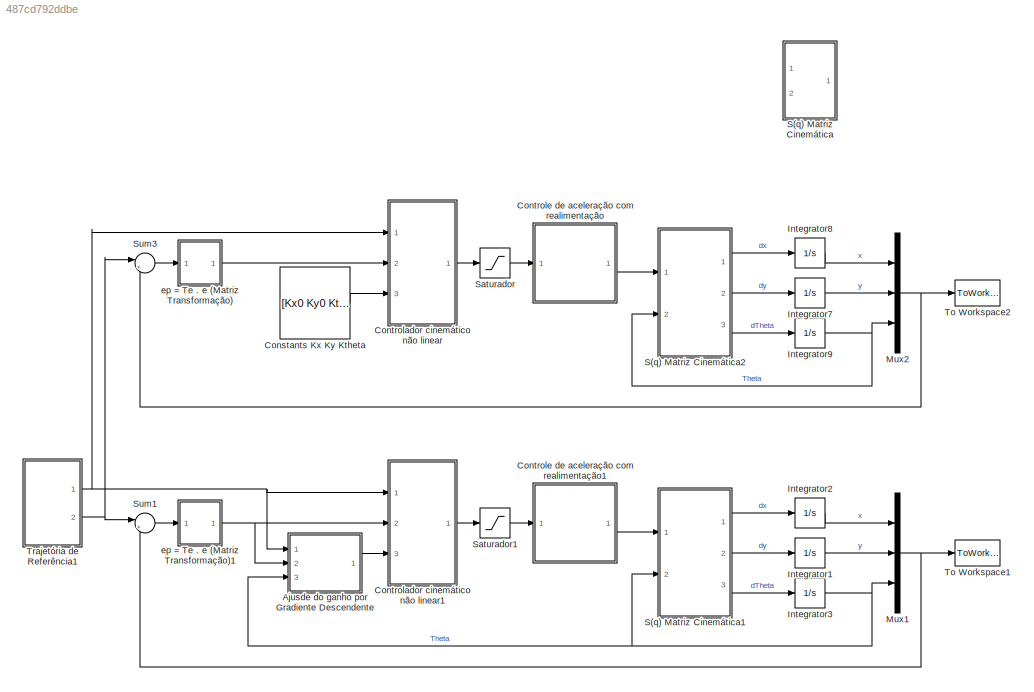
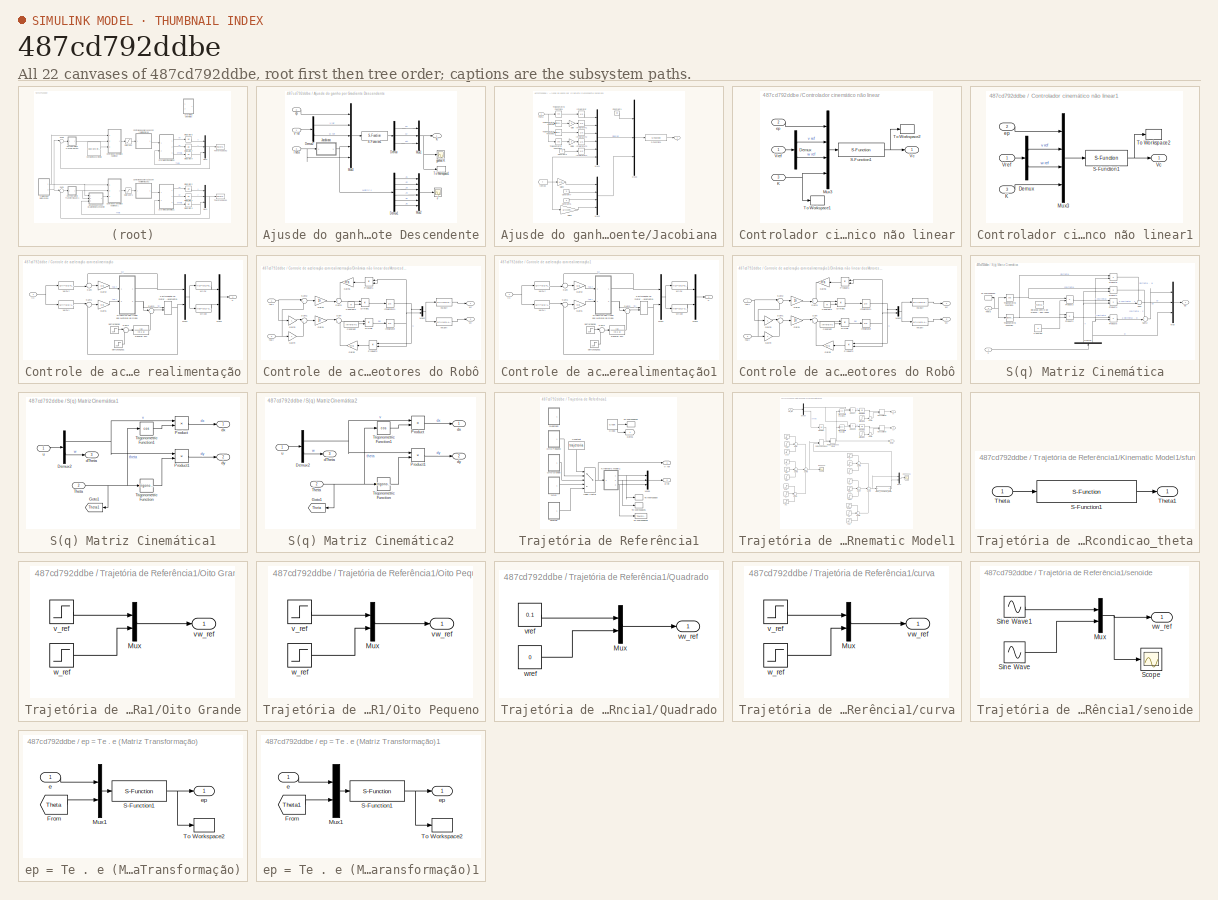
[diagram: thumbnail index - all 22 canvases of the model, root first then tree order]
MODEL slx_487cd792ddbe
KIND model
CONFIG AbsTol = auto
CONFIG FixedStep = auto
CONFIG MaxStep = auto
CONFIG MinStep = auto
CONFIG RelTol = 1e-3
CONFIG SampleTimeConstraint = Unconstrained
CONFIG Solver = ode45
CONFIG SolverMode = Auto
CONFIG SolverName = ode45
CONFIG StartTime = 0.0
CONFIG StopTime = Tsim
BLOCK [SubSystem] Ajusde do ganho por Gradiente Descendente
  Ports = [3, 1]
  RequestExecContextInheritance = off
  Variant = off
BLOCK [Demux] Ajusde do ganho por Gradiente Descendente/Demux
  DisplayOption = bar
  Outputs = 3
  Ports = [1, 3]
BLOCK [Demux] Ajusde do ganho por Gradiente Descendente/Demux1
  DisplayOption = bar
  Outputs = 6
  Ports = [1, 6]
BLOCK [Demux] Ajusde do ganho por Gradiente Descendente/Demux2
  DisplayOption = bar
  Outputs = 2
  Ports = [1, 2]
BLOCK [Scope] Ajusde do ganho por Gradiente Descendente/J
  Ports = [1]
  ScopeSpecificationString = C++SS(StrPVP('Location','[773, 277, 1290, 649]'),StrPVP('Open','off'),MxPVP('AxesTitles',24,'struct(''axes1'',''%<SignalLabel>'')'),MxPVP('ScopeGraphics',28,'struct(''FigureColor'',''[0.5 0.5 0.5]'',''AxesColor'',''[0 0 0]'',''AxesTickColor'',''[1 1 1]'',''LineColors'',''[1 1 0;1 0 1;0 1 1;1 0 0;0 1 0;0 0 1]'',''LineStyles'',''-|-|-|-|-|-'',''LineWidths'',''[0.5 0.5 0.5 0.5 0.5 0.5]'',''MarkerStyl...<+298ch>
BLOCK [SubSystem] Ajusde do ganho por Gradiente Descendente/Jacobiana
  Ports = [1, 1]
  RequestExecContextInheritance = off
  Variant = off
BLOCK [Constant] Ajusde do ganho por Gradiente Descendente/Jacobiana/Constant1
  SampleTime = Ts
  Value = Kp
BLOCK [Constant] Ajusde do ganho por Gradiente Descendente/Jacobiana/Constant3
  SampleTime = Ts
  Value = 0
BLOCK [Constant] Ajusde do ganho por Gradiente Descendente/Jacobiana/Constant5
  SampleTime = Ts
  Value = 0
BLOCK [Constant] Ajusde do ganho por Gradiente Descendente/Jacobiana/Constant7
  SampleTime = Ts
  Value = 0
BLOCK [Gain] Ajusde do ganho por Gradiente Descendente/Jacobiana/Gain
  Gain = -a
  OutDataTypeStr = Inherit: Inherit via internal rule
  ParamDataTypeStr = Inherit: Inherit via internal rule
  SaturateOnIntegerOverflow = off
BLOCK [Gain] Ajusde do ganho por Gradiente Descendente/Jacobiana/Gain1
  Gain = a
  OutDataTypeStr = Inherit: Inherit via internal rule
  ParamDataTypeStr = Inherit: Inherit via internal rule
  SaturateOnIntegerOverflow = off
BLOCK [Gain] Ajusde do ganho por Gradiente Descendente/Jacobiana/Gain2
  Gain = 1/m
  OutDataTypeStr = Inherit: Inherit via internal rule
  ParamDataTypeStr = Inherit: Inherit via internal rule
  SaturateOnIntegerOverflow = off
BLOCK [Gain] Ajusde do ganho por Gradiente Descendente/Jacobiana/Gain3
  Gain = 1/(Ic+m*a*a)
  OutDataTypeStr = Inherit: Inherit via internal rule
  ParamDataTypeStr = Inherit: Inherit via internal rule
  SaturateOnIntegerOverflow = off
BLOCK [Integrator] Ajusde do ganho por Gradiente Descendente/Jacobiana/Integrator
  Ports = [1, 1]
BLOCK [Integrator] Ajusde do ganho por Gradiente Descendente/Jacobiana/Integrator1
  Ports = [1, 1]
BLOCK [Integrator] Ajusde do ganho por Gradiente Descendente/Jacobiana/Integrator2
  Ports = [1, 1]
BLOCK [Integrator] Ajusde do ganho por Gradiente Descendente/Jacobiana/Integrator3
  Ports = [1, 1]
BLOCK [Integrator] Ajusde do ganho por Gradiente Descendente/Jacobiana/Integrator4
  Ports = [1, 1]
BLOCK [Outport] Ajusde do ganho por Gradiente Descendente/Jacobiana/J
  IconDisplay = Port number
BLOCK [Mux] Ajusde do ganho por Gradiente Descendente/Jacobiana/Mux1
  DisplayOption = bar
  Inputs = 6
  Ports = [6, 1]
BLOCK [Mux] Ajusde do ganho por Gradiente Descendente/Jacobiana/Mux2
  DisplayOption = bar
  Ports = [4, 1]
BLOCK [Mux] Ajusde do ganho por Gradiente Descendente/Jacobiana/Mux3
  DisplayOption = bar
  Inputs = 3
  Ports = [3, 1]
BLOCK [S-Function] Ajusde do ganho por Gradiente Descendente/Jacobiana/S-Function1
  EnableBusSupport = off
  FunctionName = sfunc_adaptativo_J
  Parameters = Ts
  Ports = [1, 1]
  SFunctionDeploymentMode = off
BLOCK [Inport] Ajusde do ganho por Gradiente Descendente/Jacobiana/Theta
  IconDisplay = Port number
BLOCK [Trigonometry] Ajusde do ganho por Gradiente Descendente/Jacobiana/Trigonometric Function
  Ports = [1, 1]
BLOCK [Trigonometry] Ajusde do ganho por Gradiente Descendente/Jacobiana/Trigonometric Function1
  Operator = cos
  Ports = [1, 1]
BLOCK [Trigonometry] Ajusde do ganho por Gradiente Descendente/Jacobiana/Trigonometric Function2
  Ports = [1, 1]
BLOCK [Trigonometry] Ajusde do ganho por Gradiente Descendente/Jacobiana/Trigonometric Function3
  Operator = cos
  Ports = [1, 1]
BLOCK [From] Ajusde do ganho por Gradiente Descendente/Jacobiana/tempo
  GotoTag = t
  TagVisibility = global
BLOCK [Outport] Ajusde do ganho por Gradiente Descendente/K
  IconDisplay = Port number
BLOCK [Mux] Ajusde do ganho por Gradiente Descendente/Mux1
  DisplayOption = bar
  Inputs = 3
  Ports = [3, 1]
BLOCK [Mux] Ajusde do ganho por Gradiente Descendente/Mux2
  DisplayOption = bar
  Inputs = 6
  Ports = [6, 1]
BLOCK [Mux] Ajusde do ganho por Gradiente Descendente/Mux3
  DisplayOption = bar
  Inputs = 5
  Ports = [5, 1]
BLOCK [S-Function] Ajusde do ganho por Gradiente Descendente/S-Function1
  EnableBusSupport = off
  FunctionName = sfunc_adaptativo
  Parameters = Ts
  Ports = [1, 1]
  SFunctionDeploymentMode = off
BLOCK [Inport] Ajusde do ganho por Gradiente Descendente/Theta
  IconDisplay = Port number
  Port = 3
BLOCK [ToWorkspace] Ajusde do ganho por Gradiente Descendente/To Workspace1
  MaxDataPoints = inf
  Ports = [1]
  SampleTime = Ts
  VariableName = K1
BLOCK [Inport] Ajusde do ganho por Gradiente Descendente/V ref
  IconDisplay = Port number
BLOCK [Inport] Ajusde do ganho por Gradiente Descendente/ep
  IconDisplay = Port number
  Port = 2
BLOCK [Scope] Ajusde do ganho por Gradiente Descendente/ganhos K
  Ports = [1]
  ScopeSpecificationString = C++SS(StrPVP('Location','[1, 48, 1367, 737]'),StrPVP('Open','off'),StrPVP('ZoomMode','xonly'),MxPVP('AxesTitles',24,'struct(''axes1'',''%<SignalLabel>'')'),MxPVP('ScopeGraphics',28,'struct(''FigureColor'',''[0.5 0.5 0.5]'',''AxesColor'',''[0 0 0]'',''AxesTickColor'',''[1 1 1]'',''LineColors'',''[1 1 0;1 0 1;0 1 1;1 0 0;0 1 0;0 0 1]'',''LineStyles'',''-|-|-|-|-|-'',''LineWidths'',''[0.5 0.5 0.5 0.5...<+365ch>
BLOCK [Constant] Constants Kx  Ky  Ktheta  
  Value = [Kx0\nKy0\nKtt0]
BLOCK [SubSystem] Controlador cinemático não linear
  Ports = [3, 1]
  RequestExecContextInheritance = off
  Variant = off
BLOCK [Demux] Controlador cinemático não linear/Demux
  DisplayOption = bar
  Outputs = 2
  Ports = [1, 2]
BLOCK [Inport] Controlador cinemático não linear/K
  IconDisplay = Port number
  Port = 3
BLOCK [Mux] Controlador cinemático não linear/Mux3
  DisplayOption = bar
  Ports = [4, 1]
BLOCK [S-Function] Controlador cinemático não linear/S-Function1
  EnableBusSupport = off
  FunctionName = sfunc_K_adaptativo
  Parameters = Ts
  Ports = [1, 1]
  SFunctionDeploymentMode = off
BLOCK [ToWorkspace] Controlador cinemático não linear/To Workspace1
  MaxDataPoints = inf
  Ports = [1]
  SampleTime = Ts
  VariableName = K
BLOCK [ToWorkspace] Controlador cinemático não linear/To Workspace2
  MaxDataPoints = inf
  Ports = [1]
  SampleTime = Ts
  VariableName = Vc
BLOCK [Outport] Controlador cinemático não linear/Vc
  IconDisplay = Port number
BLOCK [Inport] Controlador cinemático não linear/Vref
  IconDisplay = Port number
BLOCK [Inport] Controlador cinemático não linear/ep
  IconDisplay = Port number
  Port = 2
BLOCK [SubSystem] Controlador cinemático não linear1
  Ports = [3, 1]
  RequestExecContextInheritance = off
  Variant = off
BLOCK [Demux] Controlador cinemático não linear1/Demux
  DisplayOption = bar
  Outputs = 2
  Ports = [1, 2]
BLOCK [Inport] Controlador cinemático não linear1/K
  IconDisplay = Port number
  Port = 3
BLOCK [Mux] Controlador cinemático não linear1/Mux3
  DisplayOption = bar
  Ports = [4, 1]
BLOCK [S-Function] Controlador cinemático não linear1/S-Function1
  EnableBusSupport = off
  FunctionName = sfunc_K_adaptativo
  Parameters = Ts
  Ports = [1, 1]
  SFunctionDeploymentMode = off
BLOCK [ToWorkspace] Controlador cinemático não linear1/To Workspace2
  MaxDataPoints = inf
  Ports = [1]
  SampleTime = Ts
  VariableName = Vc1
BLOCK [Outport] Controlador cinemático não linear1/Vc
  IconDisplay = Port number
BLOCK [Inport] Controlador cinemático não linear1/Vref
  IconDisplay = Port number
BLOCK [Inport] Controlador cinemático não linear1/ep
  IconDisplay = Port number
  Port = 2
BLOCK [SubSystem] Controle de aceleração com realimentação
  Ports = [1, 1]
  RequestExecContextInheritance = off
  Variant = off
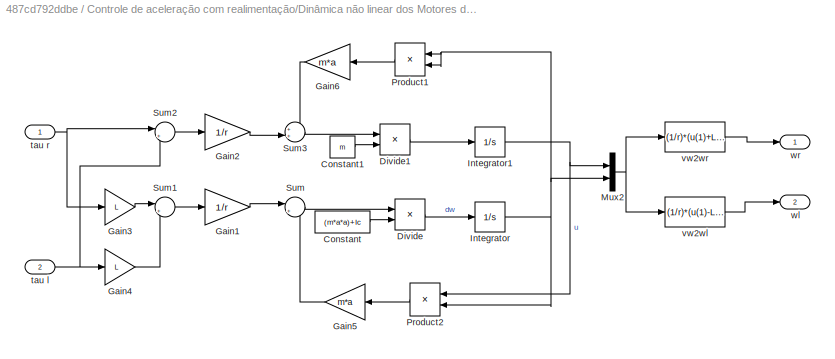
BLOCK [SubSystem] Controle de aceleração com realimentação/Dinâmica não linear dos Motores do Robô
  Ports = [2, 2]
  RequestExecContextInheritance = off
  Variant = off
BLOCK [Constant] Controle de aceleração com realimentação/Dinâmica não linear dos Motores do Robô/Constant
  Value = (m*a*a)+Ic
BLOCK [Constant] Controle de aceleração com realimentação/Dinâmica não linear dos Motores do Robô/Constant1
  Value = m
BLOCK [Product] Controle de aceleração com realimentação/Dinâmica não linear dos Motores do Robô/Divide
  InputSameDT = off
  Inputs = */
  OutDataTypeStr = Inherit: Inherit via internal rule
  Ports = [2, 1]
  RndMeth = Floor
  SaturateOnIntegerOverflow = off
BLOCK [Product] Controle de aceleração com realimentação/Dinâmica não linear dos Motores do Robô/Divide1
  InputSameDT = off
  Inputs = */
  OutDataTypeStr = Inherit: Inherit via internal rule
  Ports = [2, 1]
  RndMeth = Floor
  SaturateOnIntegerOverflow = off
BLOCK [Gain] Controle de aceleração com realimentação/Dinâmica não linear dos Motores do Robô/Gain1
  Gain = 1/r
  OutDataTypeStr = Inherit: Inherit via internal rule
  ParamDataTypeStr = Inherit: Inherit via internal rule
  SaturateOnIntegerOverflow = off
BLOCK [Gain] Controle de aceleração com realimentação/Dinâmica não linear dos Motores do Robô/Gain2
  Gain = 1/r
  OutDataTypeStr = Inherit: Inherit via internal rule
  ParamDataTypeStr = Inherit: Inherit via internal rule
  SaturateOnIntegerOverflow = off
BLOCK [Gain] Controle de aceleração com realimentação/Dinâmica não linear dos Motores do Robô/Gain3
  Gain = L
  OutDataTypeStr = Inherit: Inherit via internal rule
  ParamDataTypeStr = Inherit: Inherit via internal rule
  SaturateOnIntegerOverflow = off
BLOCK [Gain] Controle de aceleração com realimentação/Dinâmica não linear dos Motores do Robô/Gain4
  Gain = L
  OutDataTypeStr = Inherit: Inherit via internal rule
  ParamDataTypeStr = Inherit: Inherit via internal rule
  SaturateOnIntegerOverflow = off
BLOCK [Gain] Controle de aceleração com realimentação/Dinâmica não linear dos Motores do Robô/Gain5
  Gain = m*a
  OutDataTypeStr = Inherit: Inherit via internal rule
  ParamDataTypeStr = Inherit: Inherit via internal rule
  SaturateOnIntegerOverflow = off
BLOCK [Gain] Controle de aceleração com realimentação/Dinâmica não linear dos Motores do Robô/Gain6
  Gain = m*a
  OutDataTypeStr = Inherit: Inherit via internal rule
  ParamDataTypeStr = Inherit: Inherit via internal rule
  SaturateOnIntegerOverflow = off
BLOCK [Integrator] Controle de aceleração com realimentação/Dinâmica não linear dos Motores do Robô/Integrator
  Ports = [1, 1]
BLOCK [Integrator] Controle de aceleração com realimentação/Dinâmica não linear dos Motores do Robô/Integrator1
  Ports = [1, 1]
BLOCK [Mux] Controle de aceleração com realimentação/Dinâmica não linear dos Motores do Robô/Mux2
  DisplayOption = bar
  Inputs = 2
  Ports = [2, 1]
BLOCK [Product] Controle de aceleração com realimentação/Dinâmica não linear dos Motores do Robô/Product1
  InputSameDT = off
  OutDataTypeStr = Inherit: Inherit via internal rule
  Ports = [2, 1]
  RndMeth = Floor
  SampleTime = Ts
  SaturateOnIntegerOverflow = off
BLOCK [Product] Controle de aceleração com realimentação/Dinâmica não linear dos Motores do Robô/Product2
  InputSameDT = off
  OutDataTypeStr = Inherit: Inherit via internal rule
  Ports = [2, 1]
  RndMeth = Floor
  SampleTime = Ts
  SaturateOnIntegerOverflow = off
BLOCK [Sum] Controle de aceleração com realimentação/Dinâmica não linear dos Motores do Robô/Sum
  IconShape = round
  InputSameDT = off
  Inputs = |+-
  OutDataTypeStr = Inherit: Inherit via internal rule
  Ports = [2, 1]
  SaturateOnIntegerOverflow = off
BLOCK [Sum] Controle de aceleração com realimentação/Dinâmica não linear dos Motores do Robô/Sum1
  IconShape = round
  InputSameDT = off
  Inputs = |+-
  OutDataTypeStr = Inherit: Inherit via internal rule
  Ports = [2, 1]
  SaturateOnIntegerOverflow = off
BLOCK [Sum] Controle de aceleração com realimentação/Dinâmica não linear dos Motores do Robô/Sum2
  IconShape = round
  InputSameDT = off
  Inputs = |++
  OutDataTypeStr = Inherit: Inherit via internal rule
  Ports = [2, 1]
  SaturateOnIntegerOverflow = off
BLOCK [Sum] Controle de aceleração com realimentação/Dinâmica não linear dos Motores do Robô/Sum3
  IconShape = round
  InputSameDT = off
  Inputs = ++|
  OutDataTypeStr = Inherit: Inherit via internal rule
  Ports = [2, 1]
  SaturateOnIntegerOverflow = off
BLOCK [Inport] Controle de aceleração com realimentação/Dinâmica não linear dos Motores do Robô/tau l
  IconDisplay = Port number
  Port = 2
BLOCK [Inport] Controle de aceleração com realimentação/Dinâmica não linear dos Motores do Robô/tau r
  IconDisplay = Port number
BLOCK [Fcn] Controle de aceleração com realimentação/Dinâmica não linear dos Motores do Robô/vw2wl
  Expr = (1/r)*(u(1)-L*u(2))
BLOCK [Fcn] Controle de aceleração com realimentação/Dinâmica não linear dos Motores do Robô/vw2wr
  Expr = (1/r)*(u(1)+L*u(2))
BLOCK [Outport] Controle de aceleração com realimentação/Dinâmica não linear dos Motores do Robô/wl
  IconDisplay = Port number
  Port = 2
BLOCK [Outport] Controle de aceleração com realimentação/Dinâmica não linear dos Motores do Robô/wr
  IconDisplay = Port number
BLOCK [Gain] Controle de aceleração com realimentação/Gain1
  Gain = Kp
  OutDataTypeStr = Inherit: Inherit via internal rule
  ParamDataTypeStr = Inherit: Inherit via internal rule
  SaturateOnIntegerOverflow = off
BLOCK [Gain] Controle de aceleração com realimentação/Gain2
  Gain = Kp
  OutDataTypeStr = Inherit: Inherit via internal rule
  ParamDataTypeStr = Inherit: Inherit via internal rule
  SaturateOnIntegerOverflow = off
BLOCK [Mux] Controle de aceleração com realimentação/Mux1
  DisplayOption = bar
  Inputs = 2
  Ports = [2, 1]
BLOCK [Mux] Controle de aceleração com realimentação/Mux2
  DisplayOption = bar
  Inputs = 2
  Ports = [2, 1]
BLOCK [ManualSwitch] Controle de aceleração com realimentação/Perturbação no motor esquerdo (travamento)
BLOCK [Sum] Controle de aceleração com realimentação/Sum
  IconShape = round
  InputSameDT = off
  Inputs = -+|
  OutDataTypeStr = Inherit: Inherit via internal rule
  Ports = [2, 1]
  SaturateOnIntegerOverflow = off
BLOCK [Sum] Controle de aceleração com realimentação/Sum1
  IconShape = round
  InputSameDT = off
  Inputs = |+-
  OutDataTypeStr = Inherit: Inherit via internal rule
  Ports = [2, 1]
  SaturateOnIntegerOverflow = off
BLOCK [Sum] Controle de aceleração com realimentação/Sum2
  IconShape = round
  InputSameDT = off
  Inputs = |+-
  OutDataTypeStr = Inherit: Inherit via internal rule
  Ports = [2, 1]
  SaturateOnIntegerOverflow = off
BLOCK [Sum] Controle de aceleração com realimentação/Sum4
  IconShape = round
  InputSameDT = off
  Inputs = |+-
  OutDataTypeStr = Inherit: Inherit via internal rule
  Ports = [2, 1]
  SaturateOnIntegerOverflow = off
BLOCK [TransferFcn] Controle de aceleração com realimentação/Transfer Fcn
  Denominator = [0.1 1]
BLOCK [Inport] Controle de aceleração com realimentação/Vc
  IconDisplay = Port number
BLOCK [Step] Controle de aceleração com realimentação/perturbação
  After = 5
  SampleTime = Ts
  Time = 6
BLOCK [Step] Controle de aceleração com realimentação/perturbação1
  After = 5
  SampleTime = Ts
  Time = 6.5
BLOCK [Outport] Controle de aceleração com realimentação/u
  IconDisplay = Port number
BLOCK [Fcn] Controle de aceleração com realimentação/vw2Vl
  Expr = (1/r)*(u(1)-L*u(2))
BLOCK [Fcn] Controle de aceleração com realimentação/vw2Vr
  Expr = (1/r)*(u(1)+L*u(2))
BLOCK [Fcn] Controle de aceleração com realimentação/wrl2v
  Expr = (r/2)*(u(1)+u(2))
BLOCK [Fcn] Controle de aceleração com realimentação/wrl2w
  Expr = (r/b)*(u(1)-u(2))
BLOCK [SubSystem] Controle de aceleração com realimentação1
  Ports = [1, 1]
  RequestExecContextInheritance = off
  Variant = off
BLOCK [SubSystem] Controle de aceleração com realimentação1/Dinâmica não linear dos Motores do Robô
  Ports = [2, 2]
  RequestExecContextInheritance = off
  Variant = off
BLOCK [Constant] Controle de aceleração com realimentação1/Dinâmica não linear dos Motores do Robô/Constant
  Value = (m*a*a)+Ic
BLOCK [Constant] Controle de aceleração com realimentação1/Dinâmica não linear dos Motores do Robô/Constant1
  Value = m
BLOCK [Product] Controle de aceleração com realimentação1/Dinâmica não linear dos Motores do Robô/Divide
  InputSameDT = off
  Inputs = */
  OutDataTypeStr = Inherit: Inherit via internal rule
  Ports = [2, 1]
  RndMeth = Floor
  SaturateOnIntegerOverflow = off
BLOCK [Product] Controle de aceleração com realimentação1/Dinâmica não linear dos Motores do Robô/Divide1
  InputSameDT = off
  Inputs = */
  OutDataTypeStr = Inherit: Inherit via internal rule
  Ports = [2, 1]
  RndMeth = Floor
  SaturateOnIntegerOverflow = off
BLOCK [Gain] Controle de aceleração com realimentação1/Dinâmica não linear dos Motores do Robô/Gain1
  Gain = 1/r
  OutDataTypeStr = Inherit: Inherit via internal rule
  ParamDataTypeStr = Inherit: Inherit via internal rule
  SaturateOnIntegerOverflow = off
BLOCK [Gain] Controle de aceleração com realimentação1/Dinâmica não linear dos Motores do Robô/Gain2
  Gain = 1/r
  OutDataTypeStr = Inherit: Inherit via internal rule
  ParamDataTypeStr = Inherit: Inherit via internal rule
  SaturateOnIntegerOverflow = off
BLOCK [Gain] Controle de aceleração com realimentação1/Dinâmica não linear dos Motores do Robô/Gain3
  Gain = L
  OutDataTypeStr = Inherit: Inherit via internal rule
  ParamDataTypeStr = Inherit: Inherit via internal rule
  SaturateOnIntegerOverflow = off
BLOCK [Gain] Controle de aceleração com realimentação1/Dinâmica não linear dos Motores do Robô/Gain4
  Gain = L
  OutDataTypeStr = Inherit: Inherit via internal rule
  ParamDataTypeStr = Inherit: Inherit via internal rule
  SaturateOnIntegerOverflow = off
BLOCK [Gain] Controle de aceleração com realimentação1/Dinâmica não linear dos Motores do Robô/Gain5
  Gain = m*a
  OutDataTypeStr = Inherit: Inherit via internal rule
  ParamDataTypeStr = Inherit: Inherit via internal rule
  SaturateOnIntegerOverflow = off
BLOCK [Gain] Controle de aceleração com realimentação1/Dinâmica não linear dos Motores do Robô/Gain6
  Gain = m*a
  OutDataTypeStr = Inherit: Inherit via internal rule
  ParamDataTypeStr = Inherit: Inherit via internal rule
  SaturateOnIntegerOverflow = off
BLOCK [Integrator] Controle de aceleração com realimentação1/Dinâmica não linear dos Motores do Robô/Integrator
  Ports = [1, 1]
BLOCK [Integrator] Controle de aceleração com realimentação1/Dinâmica não linear dos Motores do Robô/Integrator1
  Ports = [1, 1]
BLOCK [Mux] Controle de aceleração com realimentação1/Dinâmica não linear dos Motores do Robô/Mux2
  DisplayOption = bar
  Inputs = 2
  Ports = [2, 1]
BLOCK [Product] Controle de aceleração com realimentação1/Dinâmica não linear dos Motores do Robô/Product1
  InputSameDT = off
  OutDataTypeStr = Inherit: Inherit via internal rule
  Ports = [2, 1]
  RndMeth = Floor
  SampleTime = Ts
  SaturateOnIntegerOverflow = off
BLOCK [Product] Controle de aceleração com realimentação1/Dinâmica não linear dos Motores do Robô/Product2
  InputSameDT = off
  OutDataTypeStr = Inherit: Inherit via internal rule
  Ports = [2, 1]
  RndMeth = Floor
  SampleTime = Ts
  SaturateOnIntegerOverflow = off
BLOCK [Sum] Controle de aceleração com realimentação1/Dinâmica não linear dos Motores do Robô/Sum
  IconShape = round
  InputSameDT = off
  Inputs = |+-
  OutDataTypeStr = Inherit: Inherit via internal rule
  Ports = [2, 1]
  SaturateOnIntegerOverflow = off
BLOCK [Sum] Controle de aceleração com realimentação1/Dinâmica não linear dos Motores do Robô/Sum1
  IconShape = round
  InputSameDT = off
  Inputs = |+-
  OutDataTypeStr = Inherit: Inherit via internal rule
  Ports = [2, 1]
  SaturateOnIntegerOverflow = off
BLOCK [Sum] Controle de aceleração com realimentação1/Dinâmica não linear dos Motores do Robô/Sum2
  IconShape = round
  InputSameDT = off
  Inputs = |++
  OutDataTypeStr = Inherit: Inherit via internal rule
  Ports = [2, 1]
  SaturateOnIntegerOverflow = off
BLOCK [Sum] Controle de aceleração com realimentação1/Dinâmica não linear dos Motores do Robô/Sum3
  IconShape = round
  InputSameDT = off
  Inputs = ++|
  OutDataTypeStr = Inherit: Inherit via internal rule
  Ports = [2, 1]
  SaturateOnIntegerOverflow = off
BLOCK [Inport] Controle de aceleração com realimentação1/Dinâmica não linear dos Motores do Robô/tau l
  IconDisplay = Port number
  Port = 2
BLOCK [Inport] Controle de aceleração com realimentação1/Dinâmica não linear dos Motores do Robô/tau r
  IconDisplay = Port number
BLOCK [Fcn] Controle de aceleração com realimentação1/Dinâmica não linear dos Motores do Robô/vw2wl
  Expr = (1/r)*(u(1)-L*u(2))
BLOCK [Fcn] Controle de aceleração com realimentação1/Dinâmica não linear dos Motores do Robô/vw2wr
  Expr = (1/r)*(u(1)+L*u(2))
BLOCK [Outport] Controle de aceleração com realimentação1/Dinâmica não linear dos Motores do Robô/wl
  IconDisplay = Port number
  Port = 2
BLOCK [Outport] Controle de aceleração com realimentação1/Dinâmica não linear dos Motores do Robô/wr
  IconDisplay = Port number
BLOCK [Gain] Controle de aceleração com realimentação1/Gain1
  Gain = Kp
  OutDataTypeStr = Inherit: Inherit via internal rule
  ParamDataTypeStr = Inherit: Inherit via internal rule
  SaturateOnIntegerOverflow = off
BLOCK [Gain] Controle de aceleração com realimentação1/Gain2
  Gain = Kp
  OutDataTypeStr = Inherit: Inherit via internal rule
  ParamDataTypeStr = Inherit: Inherit via internal rule
  SaturateOnIntegerOverflow = off
BLOCK [Mux] Controle de aceleração com realimentação1/Mux1
  DisplayOption = bar
  Inputs = 2
  Ports = [2, 1]
BLOCK [Mux] Controle de aceleração com realimentação1/Mux2
  DisplayOption = bar
  Inputs = 2
  Ports = [2, 1]
BLOCK [ManualSwitch] Controle de aceleração com realimentação1/Perturbação no motor esquerdo (travamento)
BLOCK [Sum] Controle de aceleração com realimentação1/Sum
  IconShape = round
  InputSameDT = off
  Inputs = -+|
  OutDataTypeStr = Inherit: Inherit via internal rule
  Ports = [2, 1]
  SaturateOnIntegerOverflow = off
BLOCK [Sum] Controle de aceleração com realimentação1/Sum1
  IconShape = round
  InputSameDT = off
  Inputs = |+-
  OutDataTypeStr = Inherit: Inherit via internal rule
  Ports = [2, 1]
  SaturateOnIntegerOverflow = off
BLOCK [Sum] Controle de aceleração com realimentação1/Sum2
  IconShape = round
  InputSameDT = off
  Inputs = |+-
  OutDataTypeStr = Inherit: Inherit via internal rule
  Ports = [2, 1]
  SaturateOnIntegerOverflow = off
BLOCK [Sum] Controle de aceleração com realimentação1/Sum4
  IconShape = round
  InputSameDT = off
  Inputs = |+-
  OutDataTypeStr = Inherit: Inherit via internal rule
  Ports = [2, 1]
  SaturateOnIntegerOverflow = off
BLOCK [TransferFcn] Controle de aceleração com realimentação1/Transfer Fcn
  Denominator = [0.1 1]
BLOCK [Inport] Controle de aceleração com realimentação1/Vc
  IconDisplay = Port number
BLOCK [Step] Controle de aceleração com realimentação1/perturbação
  After = 5
  SampleTime = Ts
  Time = 6
BLOCK [Step] Controle de aceleração com realimentação1/perturbação1
  After = 5
  SampleTime = Ts
  Time = 6.5
BLOCK [Outport] Controle de aceleração com realimentação1/u
  IconDisplay = Port number
BLOCK [Fcn] Controle de aceleração com realimentação1/vw2Vl
  Expr = (1/r)*(u(1)-L*u(2))
BLOCK [Fcn] Controle de aceleração com realimentação1/vw2Vr
  Expr = (1/r)*(u(1)+L*u(2))
BLOCK [Fcn] Controle de aceleração com realimentação1/wrl2v
  Expr = (r/2)*(u(1)+u(2))
BLOCK [Fcn] Controle de aceleração com realimentação1/wrl2w
  Expr = (r/b)*(u(1)-u(2))
BLOCK [Integrator] Integrator1
  InitialCondition = xo
  Ports = [1, 1]
BLOCK [Integrator] Integrator2
  InitialCondition = xo
  Ports = [1, 1]
BLOCK [Integrator] Integrator3
  InitialCondition = xo
  Ports = [1, 1]
BLOCK [Integrator] Integrator7
  InitialCondition = xo
  Ports = [1, 1]
BLOCK [Integrator] Integrator8
  InitialCondition = xo
  Ports = [1, 1]
BLOCK [Integrator] Integrator9
  InitialCondition = xo
  Ports = [1, 1]
BLOCK [Mux] Mux1
  DisplayOption = bar
  Inputs = 3
  Ports = [3, 1]
BLOCK [Mux] Mux2
  DisplayOption = bar
  Inputs = 3
  Ports = [3, 1]
BLOCK [SubSystem] S(q) Matriz Cinemática
  Commented = on
  Ports = [2, 1]
  RequestExecContextInheritance = off
  Variant = off
BLOCK [Constant] S(q) Matriz Cinemática/Constant
  Value = a
BLOCK [Demux] S(q) Matriz Cinemática/Demux
  DisplayOption = bar
  Outputs = 2
  Ports = [1, 2]
BLOCK [Mux] S(q) Matriz Cinemática/Mux
  DisplayOption = bar
  Inputs = 3
  Ports = [3, 1]
BLOCK [Product] S(q) Matriz Cinemática/Product1
  InputSameDT = off
  OutDataTypeStr = Inherit: Inherit via internal rule
  Ports = [2, 1]
  RndMeth = Floor
  SaturateOnIntegerOverflow = off
BLOCK [Product] S(q) Matriz Cinemática/Product2
  InputSameDT = off
  OutDataTypeStr = Inherit: Inherit via internal rule
  Ports = [2, 1]
  RndMeth = Floor
  SaturateOnIntegerOverflow = off
BLOCK [Product] S(q) Matriz Cinemática/Product3
  InputSameDT = off
  OutDataTypeStr = Inherit: Inherit via internal rule
  Ports = [2, 1]
  RndMeth = Floor
  SaturateOnIntegerOverflow = off
BLOCK [Product] S(q) Matriz Cinemática/Product4
  InputSameDT = off
  OutDataTypeStr = Inherit: Inherit via internal rule
  Ports = [2, 1]
  RndMeth = Floor
  SaturateOnIntegerOverflow = off
BLOCK [Product] S(q) Matriz Cinemática/Product5
  InputSameDT = off
  OutDataTypeStr = Inherit: Inherit via internal rule
  Ports = [2, 1]
  RndMeth = Floor
  SaturateOnIntegerOverflow = off
BLOCK [Product] S(q) Matriz Cinemática/Product8
  InputSameDT = off
  OutDataTypeStr = Inherit: Inherit via internal rule
  Ports = [2, 1]
  RndMeth = Floor
  SaturateOnIntegerOverflow = off
BLOCK [Sum] S(q) Matriz Cinemática/Sum
  IconShape = round
  InputSameDT = off
  Inputs = ++|
  OutDataTypeStr = Inherit: Inherit via internal rule
  Ports = [2, 1]
  SaturateOnIntegerOverflow = off
BLOCK [Sum] S(q) Matriz Cinemática/Sum2
  IconShape = round
  InputSameDT = off
  Inputs = +-|
  OutDataTypeStr = Inherit: Inherit via internal rule
  Ports = [2, 1]
  SaturateOnIntegerOverflow = off
BLOCK [Inport] S(q) Matriz Cinemática/Theta
  IconDisplay = Port number
  Port = 2
BLOCK [ToWorkspace] S(q) Matriz Cinemática/To Workspace2
  MaxDataPoints = inf
  Ports = [1]
  SampleTime = Ts
  VariableName = Theta
BLOCK [Trigonometry] S(q) Matriz Cinemática/Trigonometric Function
  Ports = [1, 1]
BLOCK [Trigonometry] S(q) Matriz Cinemática/Trigonometric Function1
  Operator = cos
  Ports = [1, 1]
BLOCK [FromWorkspace] S(q) Matriz Cinemática/distância centro de massa - eixo das rodas
  Commented = on
  SampleTime = Ts
  VariableName = a
  ZeroCross = on
BLOCK [Outport] S(q) Matriz Cinemática/dq
  IconDisplay = Port number
BLOCK [Inport] S(q) Matriz Cinemática/u
  IconDisplay = Port number
BLOCK [SubSystem] S(q) Matriz Cinemática1
  Ports = [2, 3]
  RequestExecContextInheritance = off
  Variant = off
BLOCK [Demux] S(q) Matriz Cinemática1/Demux2
  DisplayOption = bar
  Outputs = 2
  Ports = [1, 2]
BLOCK [Goto] S(q) Matriz Cinemática1/Goto1
  GotoTag = Theta1
  TagVisibility = global
BLOCK [Product] S(q) Matriz Cinemática1/Product
  InputSameDT = off
  OutDataTypeStr = Inherit: Inherit via internal rule
  Ports = [2, 1]
  RndMeth = Floor
  SaturateOnIntegerOverflow = off
BLOCK [Product] S(q) Matriz Cinemática1/Product1
  InputSameDT = off
  OutDataTypeStr = Inherit: Inherit via internal rule
  Ports = [2, 1]
  RndMeth = Floor
  SaturateOnIntegerOverflow = off
BLOCK [Inport] S(q) Matriz Cinemática1/Theta
  IconDisplay = Port number
  Port = 2
BLOCK [Trigonometry] S(q) Matriz Cinemática1/Trigonometric Function
  Ports = [1, 1]
BLOCK [Trigonometry] S(q) Matriz Cinemática1/Trigonometric Function1
  Operator = cos
  Ports = [1, 1]
BLOCK [Outport] S(q) Matriz Cinemática1/dTheta
  IconDisplay = Port number
  Port = 3
BLOCK [Outport] S(q) Matriz Cinemática1/dx
  IconDisplay = Port number
BLOCK [Outport] S(q) Matriz Cinemática1/dy
  IconDisplay = Port number
  Port = 2
BLOCK [Inport] S(q) Matriz Cinemática1/u
  IconDisplay = Port number
BLOCK [SubSystem] S(q) Matriz Cinemática2
  Ports = [2, 3]
  RequestExecContextInheritance = off
  Variant = off
BLOCK [Demux] S(q) Matriz Cinemática2/Demux2
  DisplayOption = bar
  Outputs = 2
  Ports = [1, 2]
BLOCK [Goto] S(q) Matriz Cinemática2/Goto1
  GotoTag = Theta
  TagVisibility = global
BLOCK [Product] S(q) Matriz Cinemática2/Product
  InputSameDT = off
  OutDataTypeStr = Inherit: Inherit via internal rule
  Ports = [2, 1]
  RndMeth = Floor
  SaturateOnIntegerOverflow = off
BLOCK [Product] S(q) Matriz Cinemática2/Product1
  InputSameDT = off
  OutDataTypeStr = Inherit: Inherit via internal rule
  Ports = [2, 1]
  RndMeth = Floor
  SaturateOnIntegerOverflow = off
BLOCK [Inport] S(q) Matriz Cinemática2/Theta
  IconDisplay = Port number
  Port = 2
BLOCK [Trigonometry] S(q) Matriz Cinemática2/Trigonometric Function
  Ports = [1, 1]
BLOCK [Trigonometry] S(q) Matriz Cinemática2/Trigonometric Function1
  Operator = cos
  Ports = [1, 1]
BLOCK [Outport] S(q) Matriz Cinemática2/dTheta
  IconDisplay = Port number
  Port = 3
BLOCK [Outport] S(q) Matriz Cinemática2/dx
  IconDisplay = Port number
BLOCK [Outport] S(q) Matriz Cinemática2/dy
  IconDisplay = Port number
  Port = 2
BLOCK [Inport] S(q) Matriz Cinemática2/u
  IconDisplay = Port number
BLOCK [Saturate] Saturador
  InputPortMap = u0
  LowerLimit = -[0 0.8]
  Ports = [1, 1]
  UpperLimit = [0.8 0.8]
BLOCK [Saturate] Saturador1
  InputPortMap = u0
  LowerLimit = -[0 0.8]
  Ports = [1, 1]
  UpperLimit = [0.8 0.8]
BLOCK [Sum] Sum1
  IconShape = round
  InputSameDT = off
  Inputs = |+-
  OutDataTypeStr = Inherit: Inherit via internal rule
  Ports = [2, 1]
  SampleTime = Ts
  SaturateOnIntegerOverflow = off
BLOCK [Sum] Sum3
  IconShape = round
  InputSameDT = off
  Inputs = |+-
  OutDataTypeStr = Inherit: Inherit via internal rule
  Ports = [2, 1]
  SampleTime = Ts
  SaturateOnIntegerOverflow = off
BLOCK [ToWorkspace] To Workspace1
  MaxDataPoints = inf
  Ports = [1]
  SampleTime = Ts
  VariableName = q1
BLOCK [ToWorkspace] To Workspace2
  MaxDataPoints = inf
  Ports = [1]
  SampleTime = Ts
  VariableName = q
BLOCK [SubSystem] Trajetória de Referência1
  Ports = [0, 2]
  RequestExecContextInheritance = off
  Variant = off
BLOCK [Clock] Trajetória de Referência1/Clock
  Decimation = 1
  DisplayTime = on
BLOCK [Constant] Trajetória de Referência1/Constant
  SampleTime = Ts
  Value = trajetoria
BLOCK [Goto] Trajetória de Referência1/Goto1
  GotoTag = t
  TagVisibility = global
BLOCK [MultiPortSwitch] Trajetória de Referência1/Index Vector
  DataPortIndices = {1,2,3,4}
  DataPortOrder = Specify indices
  InputSameDT = off
  Inputs = 1
  Ports = [5, 1]
  SaturateOnIntegerOverflow = off
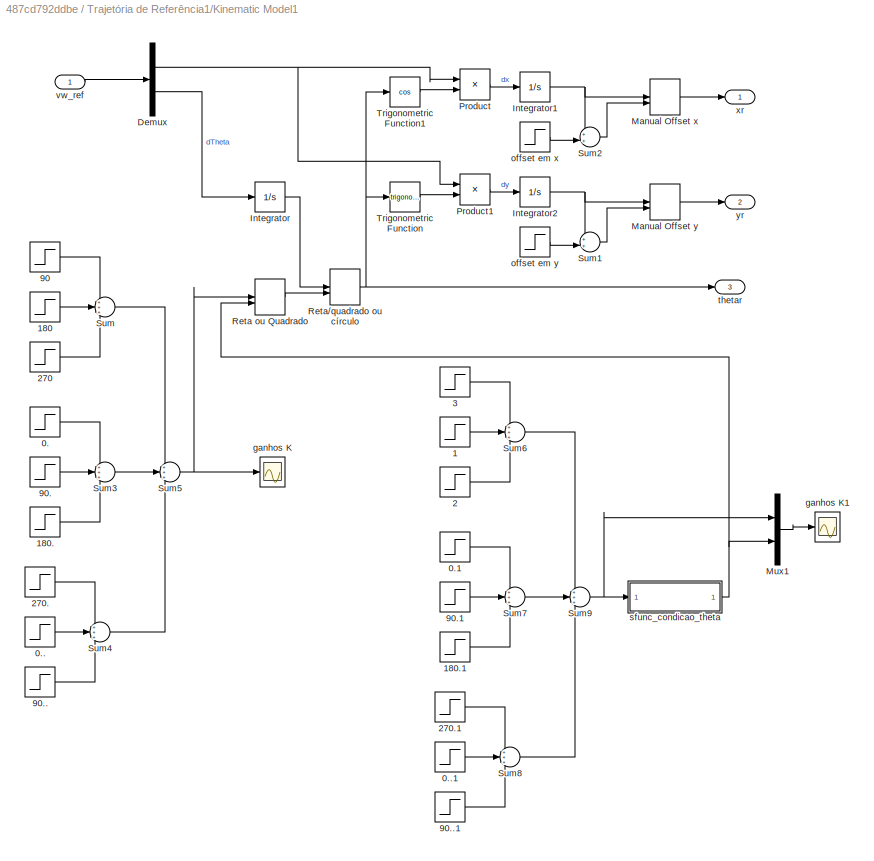
BLOCK [SubSystem] Trajetória de Referência1/Kinematic Model1
  Ports = [1, 3]
  RequestExecContextInheritance = off
  Variant = off
BLOCK [Step] Trajetória de Referência1/Kinematic Model1/0.
  After = -3*pi/2
  SampleTime = Ts
  Time = 80
BLOCK [Step] Trajetória de Referência1/Kinematic Model1/0..
  After = -3*pi/2
  SampleTime = Ts
  Time = 160
BLOCK [Step] Trajetória de Referência1/Kinematic Model1/0..1
  After = -3*pi/2
  SampleTime = Ts
  Time = 160
BLOCK [Step] Trajetória de Referência1/Kinematic Model1/0.1
  After = -3*pi/2
  SampleTime = Ts
  Time = 80
BLOCK [Step] Trajetória de Referência1/Kinematic Model1/1
  After = pi/2
  SampleTime = Ts
  Time = 40
BLOCK [Step] Trajetória de Referência1/Kinematic Model1/180
  After = pi/2
  SampleTime = Ts
  Time = 40
BLOCK [Step] Trajetória de Referência1/Kinematic Model1/180.
  After = pi/2
  SampleTime = Ts
  Time = 120
BLOCK [Step] Trajetória de Referência1/Kinematic Model1/180.1
  After = pi/2
  SampleTime = Ts
  Time = 120
BLOCK [Step] Trajetória de Referência1/Kinematic Model1/2
  After = pi/2
  SampleTime = Ts
  Time = 60
BLOCK [Step] Trajetória de Referência1/Kinematic Model1/270
  After = pi/2
  SampleTime = Ts
  Time = 60
BLOCK [Step] Trajetória de Referência1/Kinematic Model1/270.
  After = pi/2
  SampleTime = Ts
  Time = 140
BLOCK [Step] Trajetória de Referência1/Kinematic Model1/270.1
  After = pi/2
  SampleTime = Ts
  Time = 140
BLOCK [Step] Trajetória de Referência1/Kinematic Model1/3
  After = pi/2
  SampleTime = Ts
  Time = 20
BLOCK [Step] Trajetória de Referência1/Kinematic Model1/90
  After = pi/2
  SampleTime = Ts
  Time = 20
BLOCK [Step] Trajetória de Referência1/Kinematic Model1/90.
  After = pi/2
  SampleTime = Ts
  Time = 100
BLOCK [Step] Trajetória de Referência1/Kinematic Model1/90..
  After = pi/2
  SampleTime = Ts
  Time = 180
BLOCK [Step] Trajetória de Referência1/Kinematic Model1/90..1
  After = pi/2
  SampleTime = Ts
  Time = 180
BLOCK [Step] Trajetória de Referência1/Kinematic Model1/90.1
  After = pi/2
  SampleTime = Ts
  Time = 100
BLOCK [Demux] Trajetória de Referência1/Kinematic Model1/Demux
  DisplayOption = bar
  Outputs = 2
  Ports = [1, 2]
BLOCK [Integrator] Trajetória de Referência1/Kinematic Model1/Integrator
  Ports = [1, 1]
BLOCK [Integrator] Trajetória de Referência1/Kinematic Model1/Integrator1
  Ports = [1, 1]
BLOCK [Integrator] Trajetória de Referência1/Kinematic Model1/Integrator2
  Ports = [1, 1]
BLOCK [ManualSwitch] Trajetória de Referência1/Kinematic Model1/Manual Offset x
BLOCK [ManualSwitch] Trajetória de Referência1/Kinematic Model1/Manual Offset y
BLOCK [Mux] Trajetória de Referência1/Kinematic Model1/Mux1
  DisplayOption = bar
  Inputs = 2
  Ports = [2, 1]
BLOCK [Product] Trajetória de Referência1/Kinematic Model1/Product
  InputSameDT = off
  OutDataTypeStr = Inherit: Inherit via internal rule
  Ports = [2, 1]
  RndMeth = Floor
  SaturateOnIntegerOverflow = off
BLOCK [Product] Trajetória de Referência1/Kinematic Model1/Product1
  InputSameDT = off
  OutDataTypeStr = Inherit: Inherit via internal rule
  Ports = [2, 1]
  RndMeth = Floor
  SaturateOnIntegerOverflow = off
BLOCK [ManualSwitch] Trajetória de Referência1/Kinematic Model1/Reta ou Quadrado
  CurrentSetting = 0
BLOCK [ManualSwitch] Trajetória de Referência1/Kinematic Model1/Reta//quadrado ou círculo
BLOCK [Sum] Trajetória de Referência1/Kinematic Model1/Sum
  IconShape = round
  InputSameDT = off
  Inputs = +++
  OutDataTypeStr = Inherit: Inherit via internal rule
  Ports = [3, 1]
  SaturateOnIntegerOverflow = off
BLOCK [Sum] Trajetória de Referência1/Kinematic Model1/Sum1
  IconShape = round
  InputSameDT = off
  Inputs = ++|
  OutDataTypeStr = Inherit: Inherit via internal rule
  Ports = [2, 1]
  SaturateOnIntegerOverflow = off
BLOCK [Sum] Trajetória de Referência1/Kinematic Model1/Sum2
  IconShape = round
  InputSameDT = off
  Inputs = ++|
  OutDataTypeStr = Inherit: Inherit via internal rule
  Ports = [2, 1]
  SaturateOnIntegerOverflow = off
BLOCK [Sum] Trajetória de Referência1/Kinematic Model1/Sum3
  IconShape = round
  InputSameDT = off
  Inputs = +++
  OutDataTypeStr = Inherit: Inherit via internal rule
  Ports = [3, 1]
  SaturateOnIntegerOverflow = off
BLOCK [Sum] Trajetória de Referência1/Kinematic Model1/Sum4
  IconShape = round
  InputSameDT = off
  Inputs = +++
  OutDataTypeStr = Inherit: Inherit via internal rule
  Ports = [3, 1]
  SaturateOnIntegerOverflow = off
BLOCK [Sum] Trajetória de Referência1/Kinematic Model1/Sum5
  IconShape = round
  InputSameDT = off
  Inputs = +++
  OutDataTypeStr = Inherit: Inherit via internal rule
  Ports = [3, 1]
  SaturateOnIntegerOverflow = off
BLOCK [Sum] Trajetória de Referência1/Kinematic Model1/Sum6
  IconShape = round
  InputSameDT = off
  Inputs = +++
  OutDataTypeStr = Inherit: Inherit via internal rule
  Ports = [3, 1]
  SaturateOnIntegerOverflow = off
BLOCK [Sum] Trajetória de Referência1/Kinematic Model1/Sum7
  IconShape = round
  InputSameDT = off
  Inputs = +++
  OutDataTypeStr = Inherit: Inherit via internal rule
  Ports = [3, 1]
  SaturateOnIntegerOverflow = off
BLOCK [Sum] Trajetória de Referência1/Kinematic Model1/Sum8
  IconShape = round
  InputSameDT = off
  Inputs = +++
  OutDataTypeStr = Inherit: Inherit via internal rule
  Ports = [3, 1]
  SaturateOnIntegerOverflow = off
BLOCK [Sum] Trajetória de Referência1/Kinematic Model1/Sum9
  IconShape = round
  InputSameDT = off
  Inputs = +++
  OutDataTypeStr = Inherit: Inherit via internal rule
  Ports = [3, 1]
  SaturateOnIntegerOverflow = off
BLOCK [Trigonometry] Trajetória de Referência1/Kinematic Model1/Trigonometric Function
  Ports = [1, 1]
BLOCK [Trigonometry] Trajetória de Referência1/Kinematic Model1/Trigonometric Function1
  Operator = cos
  Ports = [1, 1]
BLOCK [Scope] Trajetória de Referência1/Kinematic Model1/ganhos K
  Ports = [1]
  ScopeSpecificationString = C++SS(StrPVP('Location','[5, 48, 1371, 737]'),StrPVP('Open','off'),StrPVP('ZoomMode','xonly'),MxPVP('AxesTitles',24,'struct(''axes1'',''%<SignalLabel>'')'),MxPVP('ScopeGraphics',28,'struct(''FigureColor'',''[0.5 0.5 0.5]'',''AxesColor'',''[0 0 0]'',''AxesTickColor'',''[1 1 1]'',''LineColors'',''[1 1 0;1 0 1;0 1 1;1 0 0;0 1 0;0 0 1]'',''LineStyles'',''-|-|-|-|-|-'',''LineWidths'',''[0.5 0.5 0.5 0.5...<+364ch>
BLOCK [Scope] Trajetória de Referência1/Kinematic Model1/ganhos K1
  Ports = [1]
  ScopeSpecificationString = C++SS(StrPVP('Location','[1, 48, 1367, 737]'),StrPVP('Open','off'),StrPVP('ZoomMode','xonly'),MxPVP('AxesTitles',24,'struct(''axes1'',''%<SignalLabel>'')'),MxPVP('ScopeGraphics',28,'struct(''FigureColor'',''[0.5 0.5 0.5]'',''AxesColor'',''[0 0 0]'',''AxesTickColor'',''[1 1 1]'',''LineColors'',''[1 1 0;1 0 1;0 1 1;1 0 0;0 1 0;0 0 1]'',''LineStyles'',''-|-|-|-|-|-'',''LineWidths'',''[0.5 0.5 0.5 0.5...<+369ch>
BLOCK [Step] Trajetória de Referência1/Kinematic Model1/offset em x
  After = 0.5
  Before = 0.5
  SampleTime = Ts
  Time = 0
BLOCK [Step] Trajetória de Referência1/Kinematic Model1/offset em y
  After = 0.5
  Before = 0.5
  SampleTime = Ts
  Time = 0
BLOCK [SubSystem] Trajetória de Referência1/Kinematic Model1/sfunc_condicao_theta
  Ports = [1, 1]
  RequestExecContextInheritance = off
  Variant = off
BLOCK [S-Function] Trajetória de Referência1/Kinematic Model1/sfunc_condicao_theta/S-Function1
  EnableBusSupport = off
  FunctionName = sfunc_condicao_theta_ref
  Parameters = Ts
  Ports = [1, 1]
  SFunctionDeploymentMode = off
BLOCK [Inport] Trajetória de Referência1/Kinematic Model1/sfunc_condicao_theta/Theta
  IconDisplay = Port number
BLOCK [Outport] Trajetória de Referência1/Kinematic Model1/sfunc_condicao_theta/Theta1
  IconDisplay = Port number
BLOCK [Outport] Trajetória de Referência1/Kinematic Model1/thetar
  IconDisplay = Port number
  Port = 3
BLOCK [Inport] Trajetória de Referência1/Kinematic Model1/vw_ref
  IconDisplay = Port number
BLOCK [Outport] Trajetória de Referência1/Kinematic Model1/xr
  IconDisplay = Port number
BLOCK [Outport] Trajetória de Referência1/Kinematic Model1/yr
  IconDisplay = Port number
  Port = 2
BLOCK [Mux] Trajetória de Referência1/Mux1
  DisplayOption = bar
  Inputs = 3
  Ports = [3, 1]
BLOCK [SubSystem] Trajetória de Referência1/Oito Grande
  Ports = [0, 1]
  RequestExecContextInheritance = off
  Variant = off
BLOCK [Mux] Trajetória de Referência1/Oito Grande/Mux
  DisplayOption = bar
  Inputs = 2
  Ports = [2, 1]
BLOCK [Step] Trajetória de Referência1/Oito Grande/v_ref
  After = 0.1
  Before = 0.1
  SampleTime = Ts
  Time = 0
BLOCK [Outport] Trajetória de Referência1/Oito Grande/vw_ref
  IconDisplay = Port number
BLOCK [Step] Trajetória de Referência1/Oito Grande/w_ref
  After = -0.005
  Before = 0.005
  SampleTime = Ts
  Time = 1200
BLOCK [SubSystem] Trajetória de Referência1/Oito Pequeno
  Ports = [0, 1]
  RequestExecContextInheritance = off
  Variant = off
BLOCK [Mux] Trajetória de Referência1/Oito Pequeno/Mux
  DisplayOption = bar
  Inputs = 2
  Ports = [2, 1]
BLOCK [Step] Trajetória de Referência1/Oito Pequeno/v_ref
  After = 0.2
  Before = 0.2
  SampleTime = Ts
  Time = 0
BLOCK [Outport] Trajetória de Referência1/Oito Pequeno/vw_ref
  IconDisplay = Port number
BLOCK [Step] Trajetória de Referência1/Oito Pequeno/w_ref
  After = -0.2
  Before = 0.2
  SampleTime = Ts
  Time = 25
BLOCK [SubSystem] Trajetória de Referência1/Quadrado
  Commented = on
  Ports = [0, 1]
  RequestExecContextInheritance = off
  Variant = off
BLOCK [Mux] Trajetória de Referência1/Quadrado/Mux
  DisplayOption = bar
  Inputs = 2
  Ports = [2, 1]
BLOCK [Constant] Trajetória de Referência1/Quadrado/vref
  SampleTime = Ts
  Value = 0.1
BLOCK [Outport] Trajetória de Referência1/Quadrado/vw_ref
  IconDisplay = Port number
BLOCK [Constant] Trajetória de Referência1/Quadrado/wref
  SampleTime = Ts
  Value = 0
BLOCK [ToWorkspace] Trajetória de Referência1/To Workspace
  MaxDataPoints = inf
  Ports = [1]
  SampleTime = Ts
  VariableName = xref
BLOCK [ToWorkspace] Trajetória de Referência1/To Workspace1
  MaxDataPoints = inf
  Ports = [1]
  SampleTime = Ts
  VariableName = yref
BLOCK [ToWorkspace] Trajetória de Referência1/To Workspace2
  MaxDataPoints = inf
  Ports = [1]
  SampleTime = Ts
  VariableName = t
BLOCK [ToWorkspace] Trajetória de Referência1/To Workspace3
  MaxDataPoints = inf
  Ports = [1]
  SampleTime = Ts
  VariableName = thetaref
BLOCK [Outport] Trajetória de Referência1/V ref
  IconDisplay = Port number
BLOCK [SubSystem] Trajetória de Referência1/curva
  Ports = [0, 1]
  RequestExecContextInheritance = off
  Variant = off
BLOCK [Mux] Trajetória de Referência1/curva/Mux
  DisplayOption = bar
  Inputs = 2
  Ports = [2, 1]
BLOCK [Step] Trajetória de Referência1/curva/v_ref
  After = 0.1
  Before = 0.1
  SampleTime = Ts
  Time = 0
BLOCK [Outport] Trajetória de Referência1/curva/vw_ref
  IconDisplay = Port number
BLOCK [Step] Trajetória de Referência1/curva/w_ref
  After = -0.05
  Before = 0.05
  SampleTime = Ts
  Time = 30
BLOCK [Outport] Trajetória de Referência1/p ref
  IconDisplay = Port number
  Port = 2
BLOCK [SubSystem] Trajetória de Referência1/senoide
  Ports = [0, 1]
  RequestExecContextInheritance = off
  Variant = off
BLOCK [Mux] Trajetória de Referência1/senoide/Mux
  DisplayOption = bar
  Inputs = 2
  Ports = [2, 1]
BLOCK [Scope] Trajetória de Referência1/senoide/Scope
  Ports = [1]
  ScopeSpecificationString = C++SS(StrPVP('Location','[617, 406, 941, 645]'),StrPVP('Open','off'),MxPVP('AxesTitles',24,'struct(''axes1'',''%<SignalLabel>'')'),MxPVP('ScopeGraphics',28,'struct(''FigureColor'',''[0.5 0.5 0.5]'',''AxesColor'',''[0 0 0]'',''AxesTickColor'',''[1 1 1]'',''LineColors'',''[1 1 0;1 0 1;0 1 1;1 0 0;0 1 0;0 0 1]'',''LineStyles'',''-|-|-|-|-|-'',''LineWidths'',''[0.5 0.5 0.5 0.5 0.5 0.5]'',''MarkerStyle...<+239ch>
BLOCK [Sin] Trajetória de Referência1/senoide/Sine Wave
  Amplitude = 0.1
  Ports = [0, 1]
  SampleTime = 0
BLOCK [Sin] Trajetória de Referência1/senoide/Sine Wave1
  Amplitude = 0.9
  Bias = 0.1
  Frequency = 0.09
  Ports = [0, 1]
  SampleTime = 0
BLOCK [Outport] Trajetória de Referência1/senoide/vw_ref
  IconDisplay = Port number
BLOCK [SubSystem] ep = Te . e (Matriz Transformação)
  Ports = [1, 1]
  RequestExecContextInheritance = off
  Variant = off
BLOCK [From] ep = Te . e (Matriz Transformação)/From
  GotoTag = Theta
  TagVisibility = global
BLOCK [Mux] ep = Te . e (Matriz Transformação)/Mux1
  DisplayOption = bar
  Inputs = 2
  Ports = [2, 1]
BLOCK [S-Function] ep = Te . e (Matriz Transformação)/S-Function1
  EnableBusSupport = off
  FunctionName = sfunc_Ep
  Parameters = Ts
  Ports = [1, 1]
  SFunctionDeploymentMode = off
BLOCK [ToWorkspace] ep = Te . e (Matriz Transformação)/To Workspace2
  MaxDataPoints = inf
  Ports = [1]
  SampleTime = Ts
  VariableName = ep
BLOCK [Inport] ep = Te . e (Matriz Transformação)/e
  IconDisplay = Port number
BLOCK [Outport] ep = Te . e (Matriz Transformação)/ep
  IconDisplay = Port number
BLOCK [SubSystem] ep = Te . e (Matriz Transformação)1
  Ports = [1, 1]
  RequestExecContextInheritance = off
  Variant = off
BLOCK [From] ep = Te . e (Matriz Transformação)1/From
  GotoTag = Theta1
  TagVisibility = global
BLOCK [Mux] ep = Te . e (Matriz Transformação)1/Mux1
  DisplayOption = bar
  Inputs = 2
  Ports = [2, 1]
BLOCK [S-Function] ep = Te . e (Matriz Transformação)1/S-Function1
  EnableBusSupport = off
  FunctionName = sfunc_Ep
  Parameters = Ts
  Ports = [1, 1]
  SFunctionDeploymentMode = off
BLOCK [ToWorkspace] ep = Te . e (Matriz Transformação)1/To Workspace2
  MaxDataPoints = inf
  Ports = [1]
  SampleTime = Ts
  VariableName = ep1
BLOCK [Inport] ep = Te . e (Matriz Transformação)1/e
  IconDisplay = Port number
BLOCK [Outport] ep = Te . e (Matriz Transformação)1/ep
  IconDisplay = Port number
LINE Ajusde do ganho por Gradiente Descendente/Demux1:1 -> Ajusde do ganho por Gradiente Descendente/Mux2:1
LINE Ajusde do ganho por Gradiente Descendente/Demux1:2 -> Ajusde do ganho por Gradiente Descendente/Mux2:2
LINE Ajusde do ganho por Gradiente Descendente/Demux1:3 -> Ajusde do ganho por Gradiente Descendente/Mux2:3
LINE Ajusde do ganho por Gradiente Descendente/Demux1:4 -> Ajusde do ganho por Gradiente Descendente/Mux2:4
LINE Ajusde do ganho por Gradiente Descendente/Demux1:5 -> Ajusde do ganho por Gradiente Descendente/Mux2:5
LINE Ajusde do ganho por Gradiente Descendente/Demux1:6 -> Ajusde do ganho por Gradiente Descendente/Mux2:6
LINE Ajusde do ganho por Gradiente Descendente/Demux2:1 -> Ajusde do ganho por Gradiente Descendente/Mux3:2
LINE Ajusde do ganho por Gradiente Descendente/Demux2:2 -> Ajusde do ganho por Gradiente Descendente/Mux3:3
LINE Ajusde do ganho por Gradiente Descendente/Demux:1 -> Ajusde do ganho por Gradiente Descendente/Mux1:1
LINE Ajusde do ganho por Gradiente Descendente/Demux:2 -> Ajusde do ganho por Gradiente Descendente/Mux1:2
LINE Ajusde do ganho por Gradiente Descendente/Demux:3 -> Ajusde do ganho por Gradiente Descendente/Mux1:3
LINE Ajusde do ganho por Gradiente Descendente/Jacobiana/Constant1:1 -> Ajusde do ganho por Gradiente Descendente/Jacobiana/Mux3:1
LINE Ajusde do ganho por Gradiente Descendente/Jacobiana/Constant3:1 -> Ajusde do ganho por Gradiente Descendente/Jacobiana/Integrator4:1
LINE Ajusde do ganho por Gradiente Descendente/Jacobiana/Constant5:1 -> Ajusde do ganho por Gradiente Descendente/Jacobiana/Mux2:3
LINE Ajusde do ganho por Gradiente Descendente/Jacobiana/Constant7:1 -> Ajusde do ganho por Gradiente Descendente/Jacobiana/Mux2:2
LINE Ajusde do ganho por Gradiente Descendente/Jacobiana/Gain1:1 -> Ajusde do ganho por Gradiente Descendente/Jacobiana/Integrator3:1
LINE Ajusde do ganho por Gradiente Descendente/Jacobiana/Gain2:1 -> Ajusde do ganho por Gradiente Descendente/Jacobiana/Mux2:1
LINE Ajusde do ganho por Gradiente Descendente/Jacobiana/Gain3:1 -> Ajusde do ganho por Gradiente Descendente/Jacobiana/Mux2:4
LINE Ajusde do ganho por Gradiente Descendente/Jacobiana/Gain:1 -> Ajusde do ganho por Gradiente Descendente/Jacobiana/Integrator1:1
LINE Ajusde do ganho por Gradiente Descendente/Jacobiana/Integrator1:1 -> Ajusde do ganho por Gradiente Descendente/Jacobiana/Mux1:2
LINE Ajusde do ganho por Gradiente Descendente/Jacobiana/Integrator2:1 -> Ajusde do ganho por Gradiente Descendente/Jacobiana/Mux1:3
LINE Ajusde do ganho por Gradiente Descendente/Jacobiana/Integrator3:1 -> Ajusde do ganho por Gradiente Descendente/Jacobiana/Mux1:4
LINE Ajusde do ganho por Gradiente Descendente/Jacobiana/Integrator4:1 -> Ajusde do ganho por Gradiente Descendente/Jacobiana/Mux1:5
LINE Ajusde do ganho por Gradiente Descendente/Jacobiana/Integrator:1 -> Ajusde do ganho por Gradiente Descendente/Jacobiana/Mux1:1
LINE Ajusde do ganho por Gradiente Descendente/Jacobiana/Mux1:1 -> Ajusde do ganho por Gradiente Descendente/Jacobiana/Mux3:2
LINE Ajusde do ganho por Gradiente Descendente/Jacobiana/Mux2:1 -> Ajusde do ganho por Gradiente Descendente/Jacobiana/Mux3:3
LINE Ajusde do ganho por Gradiente Descendente/Jacobiana/Mux3:1 -> Ajusde do ganho por Gradiente Descendente/Jacobiana/S-Function1:1
LINE Ajusde do ganho por Gradiente Descendente/Jacobiana/S-Function1:1 -> Ajusde do ganho por Gradiente Descendente/Jacobiana/J:1
NET Ajusde do ganho por Gradiente Descendente/Jacobiana/Theta:1 -> Ajusde do ganho por Gradiente Descendente/Jacobiana/Trigonometric Function1:1, Ajusde do ganho por Gradiente Descendente/Jacobiana/Trigonometric Function2:1, Ajusde do ganho por Gradiente Descendente/Jacobiana/Trigonometric Function3:1, Ajusde do ganho por Gradiente Descendente/Jacobiana/Trigonometric Function:1
LINE Ajusde do ganho por Gradiente Descendente/Jacobiana/Trigonometric Function1:1 -> Ajusde do ganho por Gradiente Descendente/Jacobiana/Integrator:1
LINE Ajusde do ganho por Gradiente Descendente/Jacobiana/Trigonometric Function2:1 -> Ajusde do ganho por Gradiente Descendente/Jacobiana/Integrator2:1
LINE Ajusde do ganho por Gradiente Descendente/Jacobiana/Trigonometric Function3:1 -> Ajusde do ganho por Gradiente Descendente/Jacobiana/Gain1:1
LINE Ajusde do ganho por Gradiente Descendente/Jacobiana/Trigonometric Function:1 -> Ajusde do ganho por Gradiente Descendente/Jacobiana/Gain:1
NET Ajusde do ganho por Gradiente Descendente/Jacobiana/tempo:1 -> Ajusde do ganho por Gradiente Descendente/Jacobiana/Gain2:1, Ajusde do ganho por Gradiente Descendente/Jacobiana/Gain3:1, Ajusde do ganho por Gradiente Descendente/Jacobiana/Mux1:6
NET Ajusde do ganho por Gradiente Descendente/Jacobiana:1 -> Ajusde do ganho por Gradiente Descendente/Demux1:1, Ajusde do ganho por Gradiente Descendente/Mux3:4
NET Ajusde do ganho por Gradiente Descendente/Mux1:1 -> Ajusde do ganho por Gradiente Descendente/K:1, Ajusde do ganho por Gradiente Descendente/To Workspace1:1, Ajusde do ganho por Gradiente Descendente/ganhos K:1
LINE Ajusde do ganho por Gradiente Descendente/Mux2:1 -> Ajusde do ganho por Gradiente Descendente/J:1
LINE Ajusde do ganho por Gradiente Descendente/Mux3:1 -> Ajusde do ganho por Gradiente Descendente/S-Function1:1
LINE Ajusde do ganho por Gradiente Descendente/S-Function1:1 -> Ajusde do ganho por Gradiente Descendente/Demux:1
NET Ajusde do ganho por Gradiente Descendente/Theta:1 -> Ajusde do ganho por Gradiente Descendente/Jacobiana:1, Ajusde do ganho por Gradiente Descendente/Mux3:5
LINE Ajusde do ganho por Gradiente Descendente/V ref:1 -> Ajusde do ganho por Gradiente Descendente/Demux2:1
LINE Ajusde do ganho por Gradiente Descendente/ep:1 -> Ajusde do ganho por Gradiente Descendente/Mux3:1
LINE Ajusde do ganho por Gradiente Descendente:1 -> Controlador cinemático não linear1:3
LINE Constants Kx  Ky  Ktheta  :1 -> Controlador cinemático não linear:3
LINE Controlador cinemático não linear/Demux:1 -> Controlador cinemático não linear/Mux3:2
LINE Controlador cinemático não linear/Demux:2 -> Controlador cinemático não linear/Mux3:3
NET Controlador cinemático não linear/K:1 -> Controlador cinemático não linear/Mux3:4, Controlador cinemático não linear/To Workspace1:1
LINE Controlador cinemático não linear/Mux3:1 -> Controlador cinemático não linear/S-Function1:1
NET Controlador cinemático não linear/S-Function1:1 -> Controlador cinemático não linear/To Workspace2:1, Controlador cinemático não linear/Vc:1
LINE Controlador cinemático não linear/Vref:1 -> Controlador cinemático não linear/Demux:1
LINE Controlador cinemático não linear/ep:1 -> Controlador cinemático não linear/Mux3:1
LINE Controlador cinemático não linear1/Demux:1 -> Controlador cinemático não linear1/Mux3:2
LINE Controlador cinemático não linear1/Demux:2 -> Controlador cinemático não linear1/Mux3:3
LINE Controlador cinemático não linear1/K:1 -> Controlador cinemático não linear1/Mux3:4
LINE Controlador cinemático não linear1/Mux3:1 -> Controlador cinemático não linear1/S-Function1:1
NET Controlador cinemático não linear1/S-Function1:1 -> Controlador cinemático não linear1/To Workspace2:1, Controlador cinemático não linear1/Vc:1
LINE Controlador cinemático não linear1/Vref:1 -> Controlador cinemático não linear1/Demux:1
LINE Controlador cinemático não linear1/ep:1 -> Controlador cinemático não linear1/Mux3:1
LINE Controlador cinemático não linear1:1 -> Saturador1:1
LINE Controlador cinemático não linear:1 -> Saturador:1
LINE Controle de aceleração com realimentação/Dinâmica não linear dos Motores do Robô/Constant1:1 -> Controle de aceleração com realimentação/Dinâmica não linear dos Motores do Robô/Divide1:2
LINE Controle de aceleração com realimentação/Dinâmica não linear dos Motores do Robô/Constant:1 -> Controle de aceleração com realimentação/Dinâmica não linear dos Motores do Robô/Divide:2
LINE Controle de aceleração com realimentação/Dinâmica não linear dos Motores do Robô/Divide1:1 -> Controle de aceleração com realimentação/Dinâmica não linear dos Motores do Robô/Integrator1:1
LINE Controle de aceleração com realimentação/Dinâmica não linear dos Motores do Robô/Divide:1 -> Controle de aceleração com realimentação/Dinâmica não linear dos Motores do Robô/Integrator:1
LINE Controle de aceleração com realimentação/Dinâmica não linear dos Motores do Robô/Gain1:1 -> Controle de aceleração com realimentação/Dinâmica não linear dos Motores do Robô/Sum:1
LINE Controle de aceleração com realimentação/Dinâmica não linear dos Motores do Robô/Gain2:1 -> Controle de aceleração com realimentação/Dinâmica não linear dos Motores do Robô/Sum3:2
LINE Controle de aceleração com realimentação/Dinâmica não linear dos Motores do Robô/Gain3:1 -> Controle de aceleração com realimentação/Dinâmica não linear dos Motores do Robô/Sum1:1
LINE Controle de aceleração com realimentação/Dinâmica não linear dos Motores do Robô/Gain4:1 -> Controle de aceleração com realimentação/Dinâmica não linear dos Motores do Robô/Sum1:2
LINE Controle de aceleração com realimentação/Dinâmica não linear dos Motores do Robô/Gain5:1 -> Controle de aceleração com realimentação/Dinâmica não linear dos Motores do Robô/Sum:2
LINE Controle de aceleração com realimentação/Dinâmica não linear dos Motores do Robô/Gain6:1 -> Controle de aceleração com realimentação/Dinâmica não linear dos Motores do Robô/Sum3:1
NET Controle de aceleração com realimentação/Dinâmica não linear dos Motores do Robô/Integrator1:1 -> Controle de aceleração com realimentação/Dinâmica não linear dos Motores do Robô/Mux2:1, Controle de aceleração com realimentação/Dinâmica não linear dos Motores do Robô/Product2:1
NET Controle de aceleração com realimentação/Dinâmica não linear dos Motores do Robô/Integrator:1 -> Controle de aceleração com realimentação/Dinâmica não linear dos Motores do Robô/Mux2:2, Controle de aceleração com realimentação/Dinâmica não linear dos Motores do Robô/Product1:1, Controle de aceleração com realimentação/Dinâmica não linear dos Motores do Robô/Product1:2, Controle de aceleração com realimentação/Dinâmica não linear dos Motores do Robô/Product2:2
NET Controle de aceleração com realimentação/Dinâmica não linear dos Motores do Robô/Mux2:1 -> Controle de aceleração com realimentação/Dinâmica não linear dos Motores do Robô/vw2wl:1, Controle de aceleração com realimentação/Dinâmica não linear dos Motores do Robô/vw2wr:1
LINE Controle de aceleração com realimentação/Dinâmica não linear dos Motores do Robô/Product1:1 -> Controle de aceleração com realimentação/Dinâmica não linear dos Motores do Robô/Gain6:1
LINE Controle de aceleração com realimentação/Dinâmica não linear dos Motores do Robô/Product2:1 -> Controle de aceleração com realimentação/Dinâmica não linear dos Motores do Robô/Gain5:1
LINE Controle de aceleração com realimentação/Dinâmica não linear dos Motores do Robô/Sum1:1 -> Controle de aceleração com realimentação/Dinâmica não linear dos Motores do Robô/Gain1:1
LINE Controle de aceleração com realimentação/Dinâmica não linear dos Motores do Robô/Sum2:1 -> Controle de aceleração com realimentação/Dinâmica não linear dos Motores do Robô/Gain2:1
LINE Controle de aceleração com realimentação/Dinâmica não linear dos Motores do Robô/Sum3:1 -> Controle de aceleração com realimentação/Dinâmica não linear dos Motores do Robô/Divide1:1
LINE Controle de aceleração com realimentação/Dinâmica não linear dos Motores do Robô/Sum:1 -> Controle de aceleração com realimentação/Dinâmica não linear dos Motores do Robô/Divide:1
NET Controle de aceleração com realimentação/Dinâmica não linear dos Motores do Robô/tau l:1 -> Controle de aceleração com realimentação/Dinâmica não linear dos Motores do Robô/Gain4:1, Controle de aceleração com realimentação/Dinâmica não linear dos Motores do Robô/Sum2:2
NET Controle de aceleração com realimentação/Dinâmica não linear dos Motores do Robô/tau r:1 -> Controle de aceleração com realimentação/Dinâmica não linear dos Motores do Robô/Gain3:1, Controle de aceleração com realimentação/Dinâmica não linear dos Motores do Robô/Sum2:1
LINE Controle de aceleração com realimentação/Dinâmica não linear dos Motores do Robô/vw2wl:1 -> Controle de aceleração com realimentação/Dinâmica não linear dos Motores do Robô/wl:1
LINE Controle de aceleração com realimentação/Dinâmica não linear dos Motores do Robô/vw2wr:1 -> Controle de aceleração com realimentação/Dinâmica não linear dos Motores do Robô/wr:1
NET Controle de aceleração com realimentação/Dinâmica não linear dos Motores do Robô:1 -> Controle de aceleração com realimentação/Mux1:1, Controle de aceleração com realimentação/Sum:1
NET Controle de aceleração com realimentação/Dinâmica não linear dos Motores do Robô:2 -> Controle de aceleração com realimentação/Perturbação no motor esquerdo (travamento):1, Controle de aceleração com realimentação/Sum2:1
LINE Controle de aceleração com realimentação/Gain1:1 -> Controle de aceleração com realimentação/Dinâmica não linear dos Motores do Robô:2
LINE Controle de aceleração com realimentação/Gain2:1 -> Controle de aceleração com realimentação/Dinâmica não linear dos Motores do Robô:1
NET Controle de aceleração com realimentação/Mux1:1 -> Controle de aceleração com realimentação/wrl2v:1, Controle de aceleração com realimentação/wrl2w:1
LINE Controle de aceleração com realimentação/Mux2:1 -> Controle de aceleração com realimentação/u:1
NET Controle de aceleração com realimentação/Perturbação no motor esquerdo (travamento):1 -> Controle de aceleração com realimentação/Mux1:2, Controle de aceleração com realimentação/Sum1:2
LINE Controle de aceleração com realimentação/Sum1:1 -> Controle de aceleração com realimentação/Gain1:1
LINE Controle de aceleração com realimentação/Sum2:1 -> Controle de aceleração com realimentação/Perturbação no motor esquerdo (travamento):2
LINE Controle de aceleração com realimentação/Sum4:1 -> Controle de aceleração com realimentação/Transfer Fcn:1
LINE Controle de aceleração com realimentação/Sum:1 -> Controle de aceleração com realimentação/Gain2:1
LINE Controle de aceleração com realimentação/Transfer Fcn:1 -> Controle de aceleração com realimentação/Sum2:2
NET Controle de aceleração com realimentação/Vc:1 -> Controle de aceleração com realimentação/vw2Vl:1, Controle de aceleração com realimentação/vw2Vr:1
LINE Controle de aceleração com realimentação/perturbação1:1 -> Controle de aceleração com realimentação/Sum4:2
LINE Controle de aceleração com realimentação/perturbação:1 -> Controle de aceleração com realimentação/Sum4:1
LINE Controle de aceleração com realimentação/vw2Vl:1 -> Controle de aceleração com realimentação/Sum1:1
LINE Controle de aceleração com realimentação/vw2Vr:1 -> Controle de aceleração com realimentação/Sum:2
LINE Controle de aceleração com realimentação/wrl2v:1 -> Controle de aceleração com realimentação/Mux2:1
LINE Controle de aceleração com realimentação/wrl2w:1 -> Controle de aceleração com realimentação/Mux2:2
LINE Controle de aceleração com realimentação1/Dinâmica não linear dos Motores do Robô/Constant1:1 -> Controle de aceleração com realimentação1/Dinâmica não linear dos Motores do Robô/Divide1:2
LINE Controle de aceleração com realimentação1/Dinâmica não linear dos Motores do Robô/Constant:1 -> Controle de aceleração com realimentação1/Dinâmica não linear dos Motores do Robô/Divide:2
LINE Controle de aceleração com realimentação1/Dinâmica não linear dos Motores do Robô/Divide1:1 -> Controle de aceleração com realimentação1/Dinâmica não linear dos Motores do Robô/Integrator1:1
LINE Controle de aceleração com realimentação1/Dinâmica não linear dos Motores do Robô/Divide:1 -> Controle de aceleração com realimentação1/Dinâmica não linear dos Motores do Robô/Integrator:1
LINE Controle de aceleração com realimentação1/Dinâmica não linear dos Motores do Robô/Gain1:1 -> Controle de aceleração com realimentação1/Dinâmica não linear dos Motores do Robô/Sum:1
LINE Controle de aceleração com realimentação1/Dinâmica não linear dos Motores do Robô/Gain2:1 -> Controle de aceleração com realimentação1/Dinâmica não linear dos Motores do Robô/Sum3:2
LINE Controle de aceleração com realimentação1/Dinâmica não linear dos Motores do Robô/Gain3:1 -> Controle de aceleração com realimentação1/Dinâmica não linear dos Motores do Robô/Sum1:1
LINE Controle de aceleração com realimentação1/Dinâmica não linear dos Motores do Robô/Gain4:1 -> Controle de aceleração com realimentação1/Dinâmica não linear dos Motores do Robô/Sum1:2
LINE Controle de aceleração com realimentação1/Dinâmica não linear dos Motores do Robô/Gain5:1 -> Controle de aceleração com realimentação1/Dinâmica não linear dos Motores do Robô/Sum:2
LINE Controle de aceleração com realimentação1/Dinâmica não linear dos Motores do Robô/Gain6:1 -> Controle de aceleração com realimentação1/Dinâmica não linear dos Motores do Robô/Sum3:1
NET Controle de aceleração com realimentação1/Dinâmica não linear dos Motores do Robô/Integrator1:1 -> Controle de aceleração com realimentação1/Dinâmica não linear dos Motores do Robô/Mux2:1, Controle de aceleração com realimentação1/Dinâmica não linear dos Motores do Robô/Product2:1
NET Controle de aceleração com realimentação1/Dinâmica não linear dos Motores do Robô/Integrator:1 -> Controle de aceleração com realimentação1/Dinâmica não linear dos Motores do Robô/Mux2:2, Controle de aceleração com realimentação1/Dinâmica não linear dos Motores do Robô/Product1:1, Controle de aceleração com realimentação1/Dinâmica não linear dos Motores do Robô/Product1:2, Controle de aceleração com realimentação1/Dinâmica não linear dos Motores do Robô/Product2:2
NET Controle de aceleração com realimentação1/Dinâmica não linear dos Motores do Robô/Mux2:1 -> Controle de aceleração com realimentação1/Dinâmica não linear dos Motores do Robô/vw2wl:1, Controle de aceleração com realimentação1/Dinâmica não linear dos Motores do Robô/vw2wr:1
LINE Controle de aceleração com realimentação1/Dinâmica não linear dos Motores do Robô/Product1:1 -> Controle de aceleração com realimentação1/Dinâmica não linear dos Motores do Robô/Gain6:1
LINE Controle de aceleração com realimentação1/Dinâmica não linear dos Motores do Robô/Product2:1 -> Controle de aceleração com realimentação1/Dinâmica não linear dos Motores do Robô/Gain5:1
LINE Controle de aceleração com realimentação1/Dinâmica não linear dos Motores do Robô/Sum1:1 -> Controle de aceleração com realimentação1/Dinâmica não linear dos Motores do Robô/Gain1:1
LINE Controle de aceleração com realimentação1/Dinâmica não linear dos Motores do Robô/Sum2:1 -> Controle de aceleração com realimentação1/Dinâmica não linear dos Motores do Robô/Gain2:1
LINE Controle de aceleração com realimentação1/Dinâmica não linear dos Motores do Robô/Sum3:1 -> Controle de aceleração com realimentação1/Dinâmica não linear dos Motores do Robô/Divide1:1
LINE Controle de aceleração com realimentação1/Dinâmica não linear dos Motores do Robô/Sum:1 -> Controle de aceleração com realimentação1/Dinâmica não linear dos Motores do Robô/Divide:1
NET Controle de aceleração com realimentação1/Dinâmica não linear dos Motores do Robô/tau l:1 -> Controle de aceleração com realimentação1/Dinâmica não linear dos Motores do Robô/Gain4:1, Controle de aceleração com realimentação1/Dinâmica não linear dos Motores do Robô/Sum2:2
NET Controle de aceleração com realimentação1/Dinâmica não linear dos Motores do Robô/tau r:1 -> Controle de aceleração com realimentação1/Dinâmica não linear dos Motores do Robô/Gain3:1, Controle de aceleração com realimentação1/Dinâmica não linear dos Motores do Robô/Sum2:1
LINE Controle de aceleração com realimentação1/Dinâmica não linear dos Motores do Robô/vw2wl:1 -> Controle de aceleração com realimentação1/Dinâmica não linear dos Motores do Robô/wl:1
LINE Controle de aceleração com realimentação1/Dinâmica não linear dos Motores do Robô/vw2wr:1 -> Controle de aceleração com realimentação1/Dinâmica não linear dos Motores do Robô/wr:1
NET Controle de aceleração com realimentação1/Dinâmica não linear dos Motores do Robô:1 -> Controle de aceleração com realimentação1/Mux1:1, Controle de aceleração com realimentação1/Sum:1
NET Controle de aceleração com realimentação1/Dinâmica não linear dos Motores do Robô:2 -> Controle de aceleração com realimentação1/Perturbação no motor esquerdo (travamento):1, Controle de aceleração com realimentação1/Sum2:1
LINE Controle de aceleração com realimentação1/Gain1:1 -> Controle de aceleração com realimentação1/Dinâmica não linear dos Motores do Robô:2
LINE Controle de aceleração com realimentação1/Gain2:1 -> Controle de aceleração com realimentação1/Dinâmica não linear dos Motores do Robô:1
NET Controle de aceleração com realimentação1/Mux1:1 -> Controle de aceleração com realimentação1/wrl2v:1, Controle de aceleração com realimentação1/wrl2w:1
LINE Controle de aceleração com realimentação1/Mux2:1 -> Controle de aceleração com realimentação1/u:1
NET Controle de aceleração com realimentação1/Perturbação no motor esquerdo (travamento):1 -> Controle de aceleração com realimentação1/Mux1:2, Controle de aceleração com realimentação1/Sum1:2
LINE Controle de aceleração com realimentação1/Sum1:1 -> Controle de aceleração com realimentação1/Gain1:1
LINE Controle de aceleração com realimentação1/Sum2:1 -> Controle de aceleração com realimentação1/Perturbação no motor esquerdo (travamento):2
LINE Controle de aceleração com realimentação1/Sum4:1 -> Controle de aceleração com realimentação1/Transfer Fcn:1
LINE Controle de aceleração com realimentação1/Sum:1 -> Controle de aceleração com realimentação1/Gain2:1
LINE Controle de aceleração com realimentação1/Transfer Fcn:1 -> Controle de aceleração com realimentação1/Sum2:2
NET Controle de aceleração com realimentação1/Vc:1 -> Controle de aceleração com realimentação1/vw2Vl:1, Controle de aceleração com realimentação1/vw2Vr:1
LINE Controle de aceleração com realimentação1/perturbação1:1 -> Controle de aceleração com realimentação1/Sum4:2
LINE Controle de aceleração com realimentação1/perturbação:1 -> Controle de aceleração com realimentação1/Sum4:1
LINE Controle de aceleração com realimentação1/vw2Vl:1 -> Controle de aceleração com realimentação1/Sum1:1
LINE Controle de aceleração com realimentação1/vw2Vr:1 -> Controle de aceleração com realimentação1/Sum:2
LINE Controle de aceleração com realimentação1/wrl2v:1 -> Controle de aceleração com realimentação1/Mux2:1
LINE Controle de aceleração com realimentação1/wrl2w:1 -> Controle de aceleração com realimentação1/Mux2:2
LINE Controle de aceleração com realimentação1:1 -> S(q) Matriz Cinemática1:1
LINE Controle de aceleração com realimentação:1 -> S(q) Matriz Cinemática2:1
LINE Integrator1:1 -> Mux1:2
LINE Integrator2:1 -> Mux1:1
NET Integrator3:1 -> Ajusde do ganho por Gradiente Descendente:3, Mux1:3, S(q) Matriz Cinemática1:2
LINE Integrator7:1 -> Mux2:2
LINE Integrator8:1 -> Mux2:1
NET Integrator9:1 -> Mux2:3, S(q) Matriz Cinemática2:2
NET Mux1:1 -> Sum1:2, To Workspace1:1
NET Mux2:1 -> Sum3:2, To Workspace2:1
NET S(q) Matriz Cinemática/Constant:1 -> S(q) Matriz Cinemática/Product2:1, S(q) Matriz Cinemática/Product3:2
NET S(q) Matriz Cinemática/Demux:1 -> S(q) Matriz Cinemática/Product1:2, S(q) Matriz Cinemática/Product4:2
NET S(q) Matriz Cinemática/Demux:2 -> S(q) Matriz Cinemática/Mux:3, S(q) Matriz Cinemática/Product5:2, S(q) Matriz Cinemática/Product8:2
LINE S(q) Matriz Cinemática/Mux:1 -> S(q) Matriz Cinemática/dq:1
LINE S(q) Matriz Cinemática/Product1:1 -> S(q) Matriz Cinemática/Sum2:1
LINE S(q) Matriz Cinemática/Product2:1 -> S(q) Matriz Cinemática/Product5:1
LINE S(q) Matriz Cinemática/Product3:1 -> S(q) Matriz Cinemática/Product4:1
LINE S(q) Matriz Cinemática/Product4:1 -> S(q) Matriz Cinemática/Sum:2
LINE S(q) Matriz Cinemática/Product5:1 -> S(q) Matriz Cinemática/Sum2:2
LINE S(q) Matriz Cinemática/Product8:1 -> S(q) Matriz Cinemática/Sum:1
LINE S(q) Matriz Cinemática/Sum2:1 -> S(q) Matriz Cinemática/Mux:1
LINE S(q) Matriz Cinemática/Sum:1 -> S(q) Matriz Cinemática/Mux:2
NET S(q) Matriz Cinemática/Theta:1 -> S(q) Matriz Cinemática/To Workspace2:1, S(q) Matriz Cinemática/Trigonometric Function1:1, S(q) Matriz Cinemática/Trigonometric Function:1
NET S(q) Matriz Cinemática/Trigonometric Function1:1 -> S(q) Matriz Cinemática/Product1:1, S(q) Matriz Cinemática/Product3:1
NET S(q) Matriz Cinemática/Trigonometric Function:1 -> S(q) Matriz Cinemática/Product2:2, S(q) Matriz Cinemática/Product8:1
LINE S(q) Matriz Cinemática/u:1 -> S(q) Matriz Cinemática/Demux:1
NET S(q) Matriz Cinemática1/Demux2:1 -> S(q) Matriz Cinemática1/Product1:1, S(q) Matriz Cinemática1/Product:1
LINE S(q) Matriz Cinemática1/Demux2:2 -> S(q) Matriz Cinemática1/dTheta:1
LINE S(q) Matriz Cinemática1/Product1:1 -> S(q) Matriz Cinemática1/dy:1
LINE S(q) Matriz Cinemática1/Product:1 -> S(q) Matriz Cinemática1/dx:1
NET S(q) Matriz Cinemática1/Theta:1 -> S(q) Matriz Cinemática1/Goto1:1, S(q) Matriz Cinemática1/Trigonometric Function1:1, S(q) Matriz Cinemática1/Trigonometric Function:1
LINE S(q) Matriz Cinemática1/Trigonometric Function1:1 -> S(q) Matriz Cinemática1/Product:2
LINE S(q) Matriz Cinemática1/Trigonometric Function:1 -> S(q) Matriz Cinemática1/Product1:2
LINE S(q) Matriz Cinemática1/u:1 -> S(q) Matriz Cinemática1/Demux2:1
LINE S(q) Matriz Cinemática1:1 -> Integrator2:1
LINE S(q) Matriz Cinemática1:2 -> Integrator1:1
LINE S(q) Matriz Cinemática1:3 -> Integrator3:1
NET S(q) Matriz Cinemática2/Demux2:1 -> S(q) Matriz Cinemática2/Product1:1, S(q) Matriz Cinemática2/Product:1
LINE S(q) Matriz Cinemática2/Demux2:2 -> S(q) Matriz Cinemática2/dTheta:1
LINE S(q) Matriz Cinemática2/Product1:1 -> S(q) Matriz Cinemática2/dy:1
LINE S(q) Matriz Cinemática2/Product:1 -> S(q) Matriz Cinemática2/dx:1
NET S(q) Matriz Cinemática2/Theta:1 -> S(q) Matriz Cinemática2/Goto1:1, S(q) Matriz Cinemática2/Trigonometric Function1:1, S(q) Matriz Cinemática2/Trigonometric Function:1
LINE S(q) Matriz Cinemática2/Trigonometric Function1:1 -> S(q) Matriz Cinemática2/Product:2
LINE S(q) Matriz Cinemática2/Trigonometric Function:1 -> S(q) Matriz Cinemática2/Product1:2
LINE S(q) Matriz Cinemática2/u:1 -> S(q) Matriz Cinemática2/Demux2:1
LINE S(q) Matriz Cinemática2:1 -> Integrator8:1
LINE S(q) Matriz Cinemática2:2 -> Integrator7:1
LINE S(q) Matriz Cinemática2:3 -> Integrator9:1
LINE Saturador1:1 -> Controle de aceleração com realimentação1:1
LINE Saturador:1 -> Controle de aceleração com realimentação:1
LINE Sum1:1 -> ep = Te . e (Matriz Transformação)1:1
LINE Sum3:1 -> ep = Te . e (Matriz Transformação):1
NET Trajetória de Referência1/Clock:1 -> Trajetória de Referência1/Goto1:1, Trajetória de Referência1/To Workspace2:1
LINE Trajetória de Referência1/Constant:1 -> Trajetória de Referência1/Index Vector:1
NET Trajetória de Referência1/Index Vector:1 -> Trajetória de Referência1/Kinematic Model1:1, Trajetória de Referência1/V ref:1
LINE Trajetória de Referência1/Kinematic Model1/0..1:1 -> Trajetória de Referência1/Kinematic Model1/Sum8:2
LINE Trajetória de Referência1/Kinematic Model1/0..:1 -> Trajetória de Referência1/Kinematic Model1/Sum4:2
LINE Trajetória de Referência1/Kinematic Model1/0.1:1 -> Trajetória de Referência1/Kinematic Model1/Sum7:1
LINE Trajetória de Referência1/Kinematic Model1/0.:1 -> Trajetória de Referência1/Kinematic Model1/Sum3:1
LINE Trajetória de Referência1/Kinematic Model1/180.1:1 -> Trajetória de Referência1/Kinematic Model1/Sum7:3
LINE Trajetória de Referência1/Kinematic Model1/180.:1 -> Trajetória de Referência1/Kinematic Model1/Sum3:3
LINE Trajetória de Referência1/Kinematic Model1/180:1 -> Trajetória de Referência1/Kinematic Model1/Sum:2
LINE Trajetória de Referência1/Kinematic Model1/1:1 -> Trajetória de Referência1/Kinematic Model1/Sum6:2
LINE Trajetória de Referência1/Kinematic Model1/270.1:1 -> Trajetória de Referência1/Kinematic Model1/Sum8:1
LINE Trajetória de Referência1/Kinematic Model1/270.:1 -> Trajetória de Referência1/Kinematic Model1/Sum4:1
LINE Trajetória de Referência1/Kinematic Model1/270:1 -> Trajetória de Referência1/Kinematic Model1/Sum:3
LINE Trajetória de Referência1/Kinematic Model1/2:1 -> Trajetória de Referência1/Kinematic Model1/Sum6:3
LINE Trajetória de Referência1/Kinematic Model1/3:1 -> Trajetória de Referência1/Kinematic Model1/Sum6:1
LINE Trajetória de Referência1/Kinematic Model1/90..1:1 -> Trajetória de Referência1/Kinematic Model1/Sum8:3
LINE Trajetória de Referência1/Kinematic Model1/90..:1 -> Trajetória de Referência1/Kinematic Model1/Sum4:3
LINE Trajetória de Referência1/Kinematic Model1/90.1:1 -> Trajetória de Referência1/Kinematic Model1/Sum7:2
LINE Trajetória de Referência1/Kinematic Model1/90.:1 -> Trajetória de Referência1/Kinematic Model1/Sum3:2
LINE Trajetória de Referência1/Kinematic Model1/90:1 -> Trajetória de Referência1/Kinematic Model1/Sum:1
NET Trajetória de Referência1/Kinematic Model1/Demux:1 -> Trajetória de Referência1/Kinematic Model1/Product1:1, Trajetória de Referência1/Kinematic Model1/Product:1
LINE Trajetória de Referência1/Kinematic Model1/Demux:2 -> Trajetória de Referência1/Kinematic Model1/Integrator:1
NET Trajetória de Referência1/Kinematic Model1/Integrator1:1 -> Trajetória de Referência1/Kinematic Model1/Manual Offset x:1, Trajetória de Referência1/Kinematic Model1/Sum2:1
NET Trajetória de Referência1/Kinematic Model1/Integrator2:1 -> Trajetória de Referência1/Kinematic Model1/Manual Offset y:1, Trajetória de Referência1/Kinematic Model1/Sum1:1
LINE Trajetória de Referência1/Kinematic Model1/Integrator:1 -> Trajetória de Referência1/Kinematic Model1/Reta//quadrado ou círculo:1
LINE Trajetória de Referência1/Kinematic Model1/Manual Offset x:1 -> Trajetória de Referência1/Kinematic Model1/xr:1
LINE Trajetória de Referência1/Kinematic Model1/Manual Offset y:1 -> Trajetória de Referência1/Kinematic Model1/yr:1
LINE Trajetória de Referência1/Kinematic Model1/Mux1:1 -> Trajetória de Referência1/Kinematic Model1/ganhos K1:1
LINE Trajetória de Referência1/Kinematic Model1/Product1:1 -> Trajetória de Referência1/Kinematic Model1/Integrator2:1
LINE Trajetória de Referência1/Kinematic Model1/Product:1 -> Trajetória de Referência1/Kinematic Model1/Integrator1:1
LINE Trajetória de Referência1/Kinematic Model1/Reta ou Quadrado:1 -> Trajetória de Referência1/Kinematic Model1/Reta//quadrado ou círculo:2
NET Trajetória de Referência1/Kinematic Model1/Reta//quadrado ou círculo:1 -> Trajetória de Referência1/Kinematic Model1/Trigonometric Function1:1, Trajetória de Referência1/Kinematic Model1/Trigonometric Function:1, Trajetória de Referência1/Kinematic Model1/thetar:1
LINE Trajetória de Referência1/Kinematic Model1/Sum1:1 -> Trajetória de Referência1/Kinematic Model1/Manual Offset y:2
LINE Trajetória de Referência1/Kinematic Model1/Sum2:1 -> Trajetória de Referência1/Kinematic Model1/Manual Offset x:2
LINE Trajetória de Referência1/Kinematic Model1/Sum3:1 -> Trajetória de Referência1/Kinematic Model1/Sum5:2
LINE Trajetória de Referência1/Kinematic Model1/Sum4:1 -> Trajetória de Referência1/Kinematic Model1/Sum5:3
NET Trajetória de Referência1/Kinematic Model1/Sum5:1 -> Trajetória de Referência1/Kinematic Model1/Reta ou Quadrado:1, Trajetória de Referência1/Kinematic Model1/ganhos K:1
LINE Trajetória de Referência1/Kinematic Model1/Sum6:1 -> Trajetória de Referência1/Kinematic Model1/Sum9:1
LINE Trajetória de Referência1/Kinematic Model1/Sum7:1 -> Trajetória de Referência1/Kinematic Model1/Sum9:2
LINE Trajetória de Referência1/Kinematic Model1/Sum8:1 -> Trajetória de Referência1/Kinematic Model1/Sum9:3
NET Trajetória de Referência1/Kinematic Model1/Sum9:1 -> Trajetória de Referência1/Kinematic Model1/Mux1:1, Trajetória de Referência1/Kinematic Model1/sfunc_condicao_theta:1
LINE Trajetória de Referência1/Kinematic Model1/Sum:1 -> Trajetória de Referência1/Kinematic Model1/Sum5:1
LINE Trajetória de Referência1/Kinematic Model1/Trigonometric Function1:1 -> Trajetória de Referência1/Kinematic Model1/Product:2
LINE Trajetória de Referência1/Kinematic Model1/Trigonometric Function:1 -> Trajetória de Referência1/Kinematic Model1/Product1:2
LINE Trajetória de Referência1/Kinematic Model1/offset em x:1 -> Trajetória de Referência1/Kinematic Model1/Sum2:2
LINE Trajetória de Referência1/Kinematic Model1/offset em y:1 -> Trajetória de Referência1/Kinematic Model1/Sum1:2
LINE Trajetória de Referência1/Kinematic Model1/sfunc_condicao_theta/S-Function1:1 -> Trajetória de Referência1/Kinematic Model1/sfunc_condicao_theta/Theta1:1
LINE Trajetória de Referência1/Kinematic Model1/sfunc_condicao_theta/Theta:1 -> Trajetória de Referência1/Kinematic Model1/sfunc_condicao_theta/S-Function1:1
NET Trajetória de Referência1/Kinematic Model1/sfunc_condicao_theta:1 -> Trajetória de Referência1/Kinematic Model1/Mux1:2, Trajetória de Referência1/Kinematic Model1/Reta ou Quadrado:2
LINE Trajetória de Referência1/Kinematic Model1/vw_ref:1 -> Trajetória de Referência1/Kinematic Model1/Demux:1
NET Trajetória de Referência1/Kinematic Model1:1 -> Trajetória de Referência1/Mux1:1, Trajetória de Referência1/To Workspace:1
NET Trajetória de Referência1/Kinematic Model1:2 -> Trajetória de Referência1/Mux1:2, Trajetória de Referência1/To Workspace1:1
NET Trajetória de Referência1/Kinematic Model1:3 -> Trajetória de Referência1/Mux1:3, Trajetória de Referência1/To Workspace3:1
LINE Trajetória de Referência1/Mux1:1 -> Trajetória de Referência1/p ref:1
LINE Trajetória de Referência1/Oito Grande/Mux:1 -> Trajetória de Referência1/Oito Grande/vw_ref:1
LINE Trajetória de Referência1/Oito Grande/v_ref:1 -> Trajetória de Referência1/Oito Grande/Mux:1
LINE Trajetória de Referência1/Oito Grande/w_ref:1 -> Trajetória de Referência1/Oito Grande/Mux:2
LINE Trajetória de Referência1/Oito Grande:1 -> Trajetória de Referência1/Index Vector:3
LINE Trajetória de Referência1/Oito Pequeno/Mux:1 -> Trajetória de Referência1/Oito Pequeno/vw_ref:1
LINE Trajetória de Referência1/Oito Pequeno/v_ref:1 -> Trajetória de Referência1/Oito Pequeno/Mux:1
LINE Trajetória de Referência1/Oito Pequeno/w_ref:1 -> Trajetória de Referência1/Oito Pequeno/Mux:2
LINE Trajetória de Referência1/Oito Pequeno:1 -> Trajetória de Referência1/Index Vector:2
LINE Trajetória de Referência1/Quadrado/Mux:1 -> Trajetória de Referência1/Quadrado/vw_ref:1
LINE Trajetória de Referência1/Quadrado/vref:1 -> Trajetória de Referência1/Quadrado/Mux:1
LINE Trajetória de Referência1/Quadrado/wref:1 -> Trajetória de Referência1/Quadrado/Mux:2
LINE Trajetória de Referência1/curva/Mux:1 -> Trajetória de Referência1/curva/vw_ref:1
LINE Trajetória de Referência1/curva/v_ref:1 -> Trajetória de Referência1/curva/Mux:1
LINE Trajetória de Referência1/curva/w_ref:1 -> Trajetória de Referência1/curva/Mux:2
LINE Trajetória de Referência1/curva:1 -> Trajetória de Referência1/Index Vector:4
NET Trajetória de Referência1/senoide/Mux:1 -> Trajetória de Referência1/senoide/Scope:1, Trajetória de Referência1/senoide/vw_ref:1
LINE Trajetória de Referência1/senoide/Sine Wave1:1 -> Trajetória de Referência1/senoide/Mux:1
LINE Trajetória de Referência1/senoide/Sine Wave:1 -> Trajetória de Referência1/senoide/Mux:2
LINE Trajetória de Referência1/senoide:1 -> Trajetória de Referência1/Index Vector:5
NET Trajetória de Referência1:1 -> Ajusde do ganho por Gradiente Descendente:1, Controlador cinemático não linear1:1, Controlador cinemático não linear:1
NET Trajetória de Referência1:2 -> Sum1:1, Sum3:1
LINE ep = Te . e (Matriz Transformação)/From:1 -> ep = Te . e (Matriz Transformação)/Mux1:2
LINE ep = Te . e (Matriz Transformação)/Mux1:1 -> ep = Te . e (Matriz Transformação)/S-Function1:1
NET ep = Te . e (Matriz Transformação)/S-Function1:1 -> ep = Te . e (Matriz Transformação)/To Workspace2:1, ep = Te . e (Matriz Transformação)/ep:1
LINE ep = Te . e (Matriz Transformação)/e:1 -> ep = Te . e (Matriz Transformação)/Mux1:1
LINE ep = Te . e (Matriz Transformação)1/From:1 -> ep = Te . e (Matriz Transformação)1/Mux1:2
LINE ep = Te . e (Matriz Transformação)1/Mux1:1 -> ep = Te . e (Matriz Transformação)1/S-Function1:1
NET ep = Te . e (Matriz Transformação)1/S-Function1:1 -> ep = Te . e (Matriz Transformação)1/To Workspace2:1, ep = Te . e (Matriz Transformação)1/ep:1
LINE ep = Te . e (Matriz Transformação)1/e:1 -> ep = Te . e (Matriz Transformação)1/Mux1:1
NET ep = Te . e (Matriz Transformação)1:1 -> Ajusde do ganho por Gradiente Descendente:2, Controlador cinemático não linear1:2
LINE ep = Te . e (Matriz Transformação):1 -> Controlador cinemático não linear:2
note: NET lines group one-source signal fan-out (src -> all destinations, sorted); 1:1 wires keep LINE
